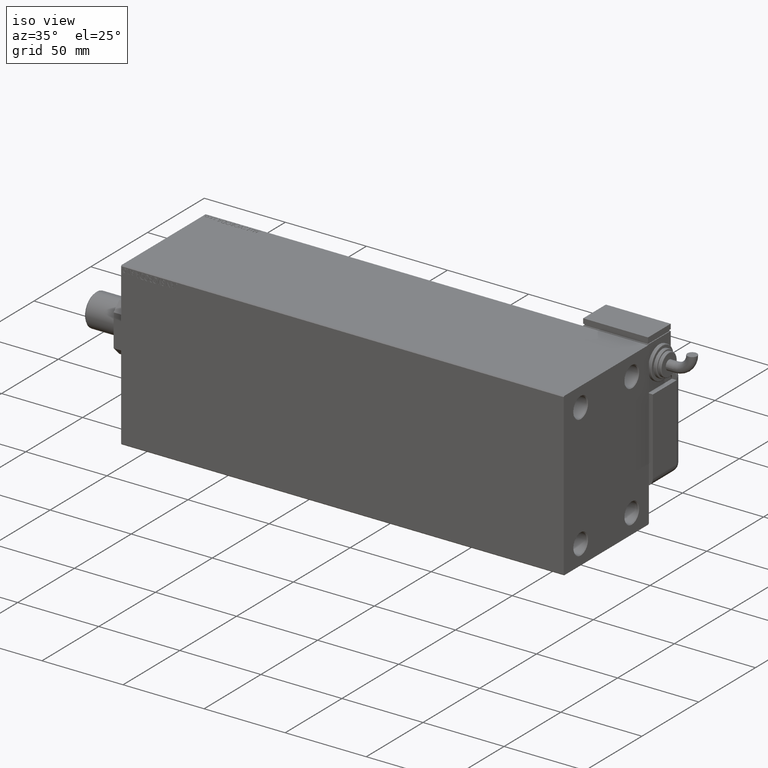
[diagram: clean part render]
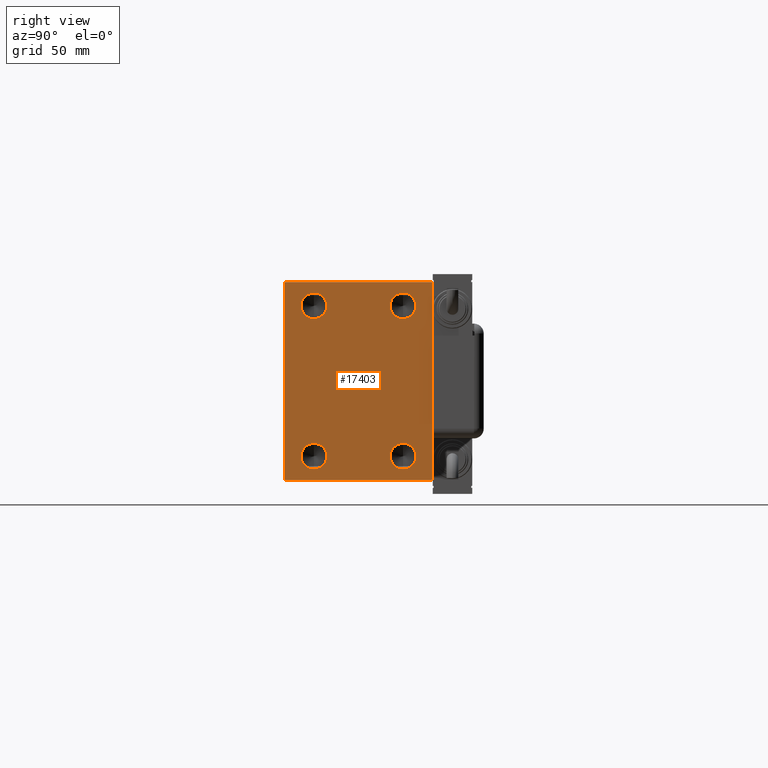
[diagram: tour spotlight — one face highlighted and labeled with its STEP entity id]
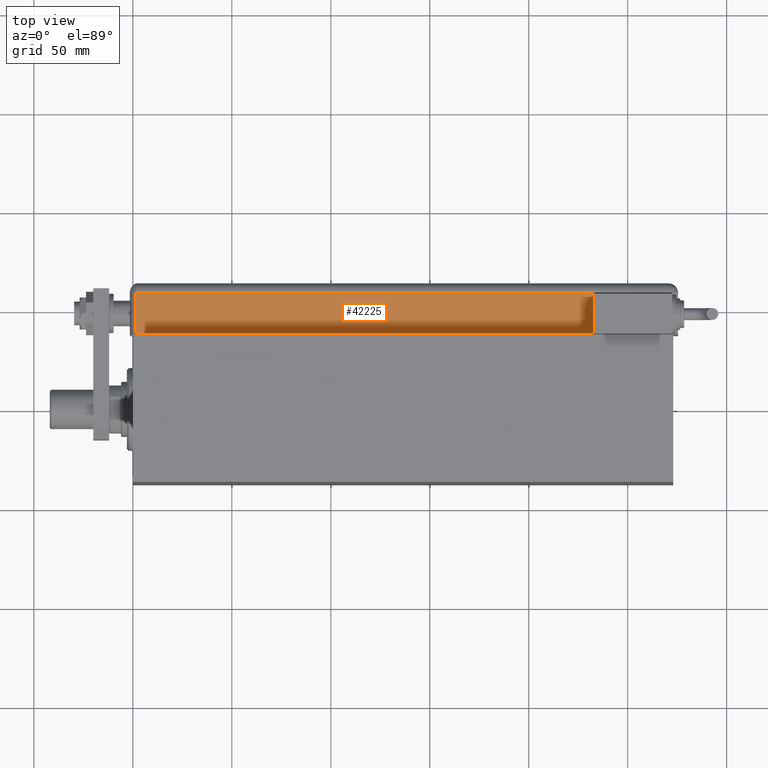
[diagram: tour spotlight — one face highlighted and labeled with its STEP entity id]
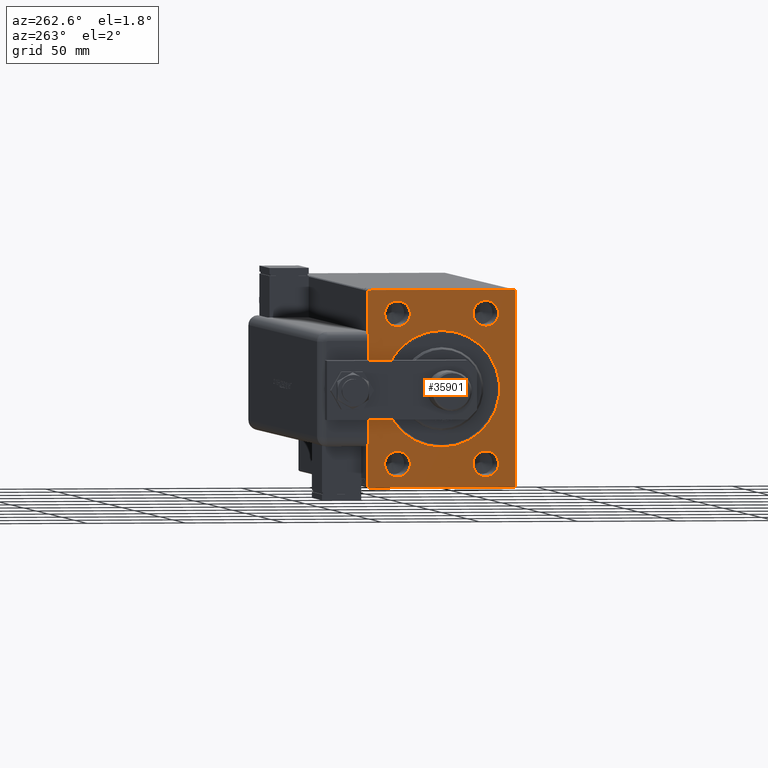
[diagram: tour spotlight — one face highlighted and labeled with its STEP entity id]
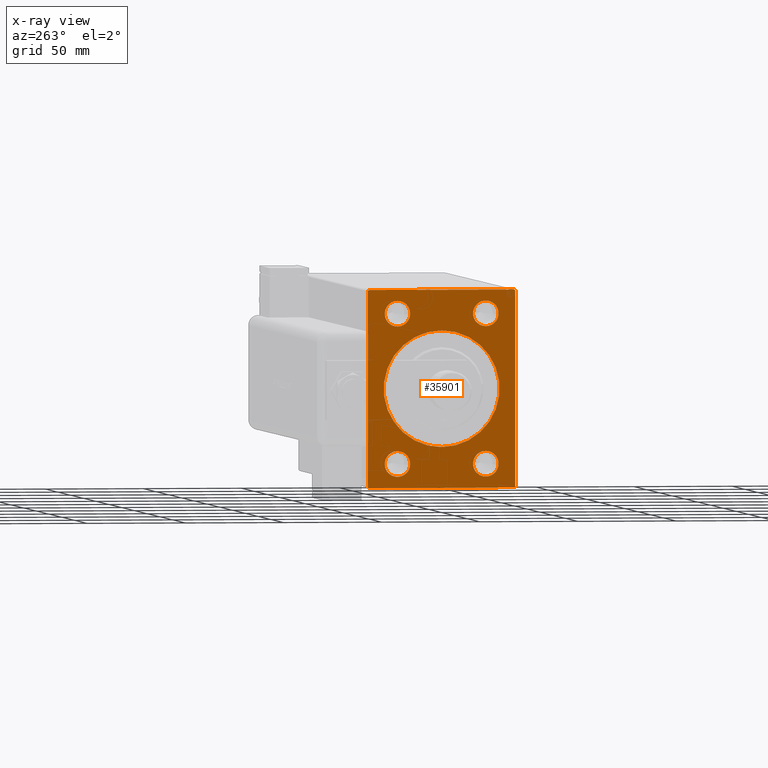
[diagram: x-ray of the same camera — body ghosted, this tour face saturated]
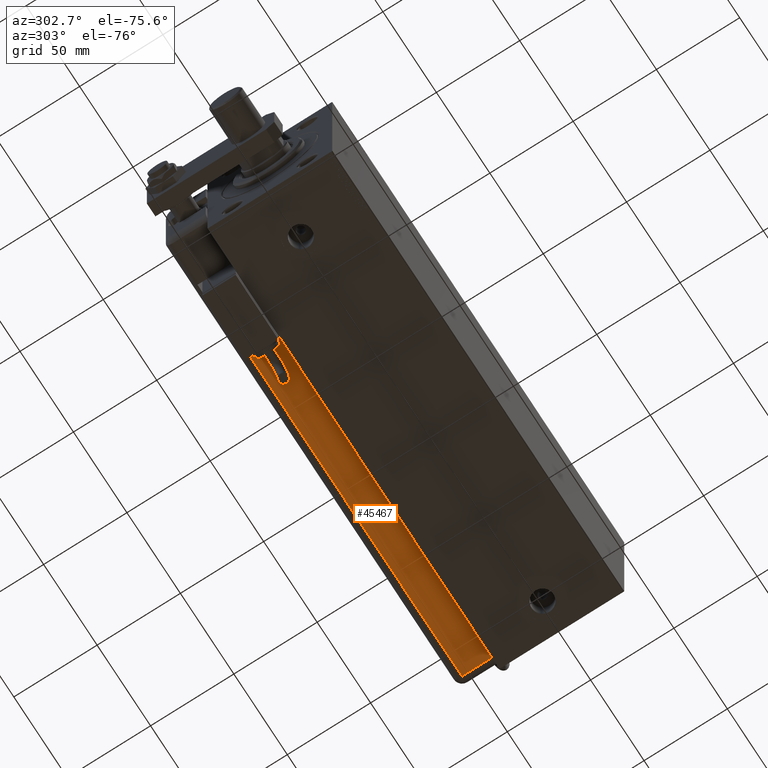
[diagram: tour spotlight — one face highlighted and labeled with its STEP entity id]
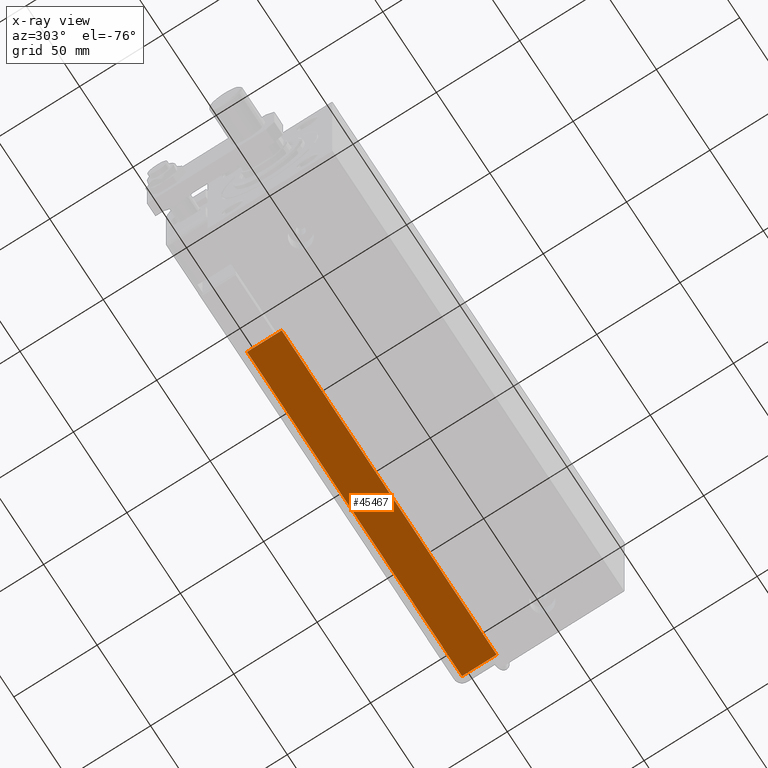
[diagram: x-ray of the same camera — body ghosted, this tour face saturated]
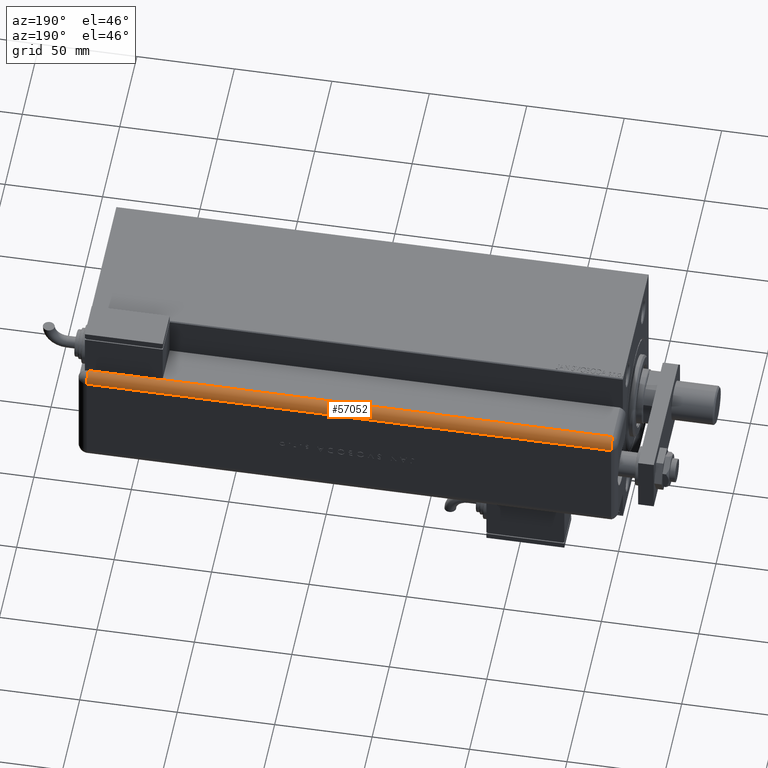
[diagram: tour spotlight — one face highlighted and labeled with its STEP entity id]
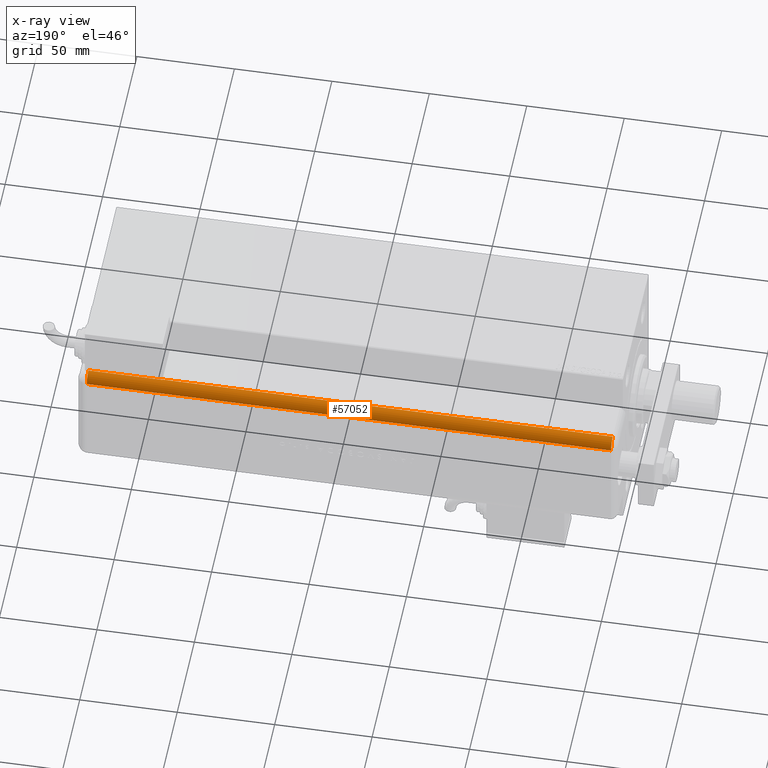
[diagram: x-ray of the same camera — body ghosted, this tour face saturated]
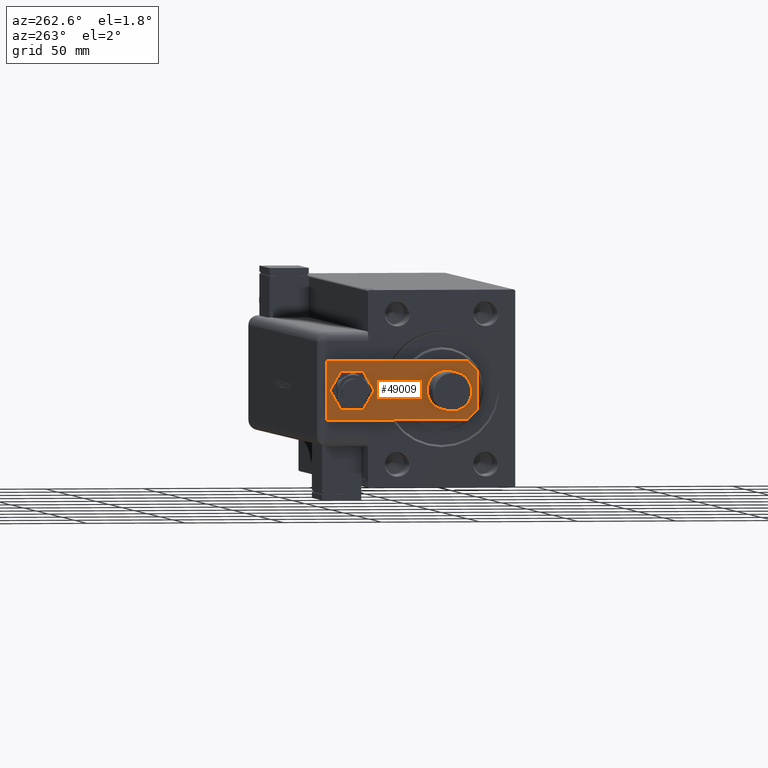
[diagram: tour spotlight — one face highlighted and labeled with its STEP entity id]
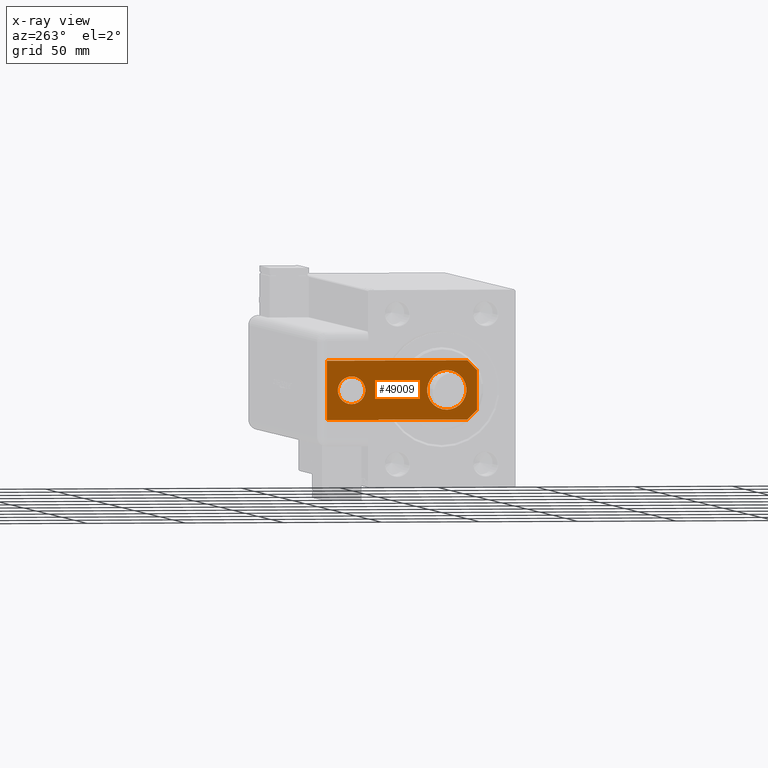
[diagram: x-ray of the same camera — body ghosted, this tour face saturated]
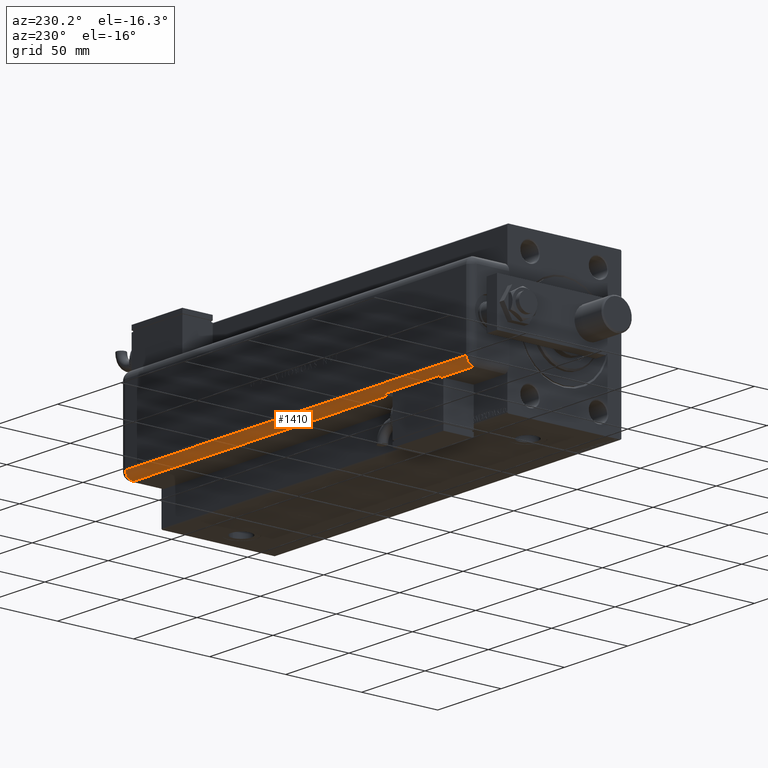
[diagram: tour spotlight — one face highlighted and labeled with its STEP entity id]
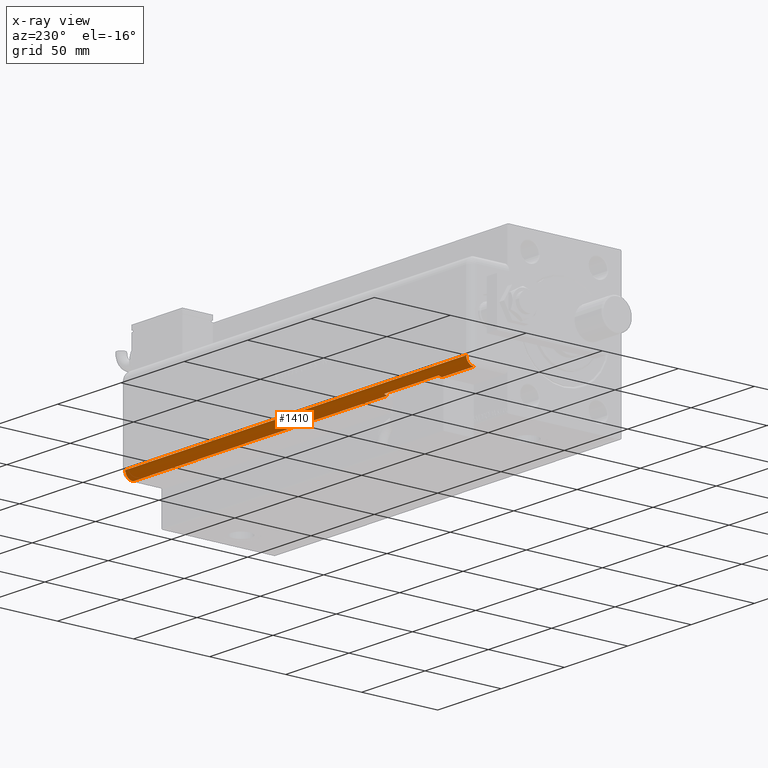
[diagram: x-ray of the same camera — body ghosted, this tour face saturated]
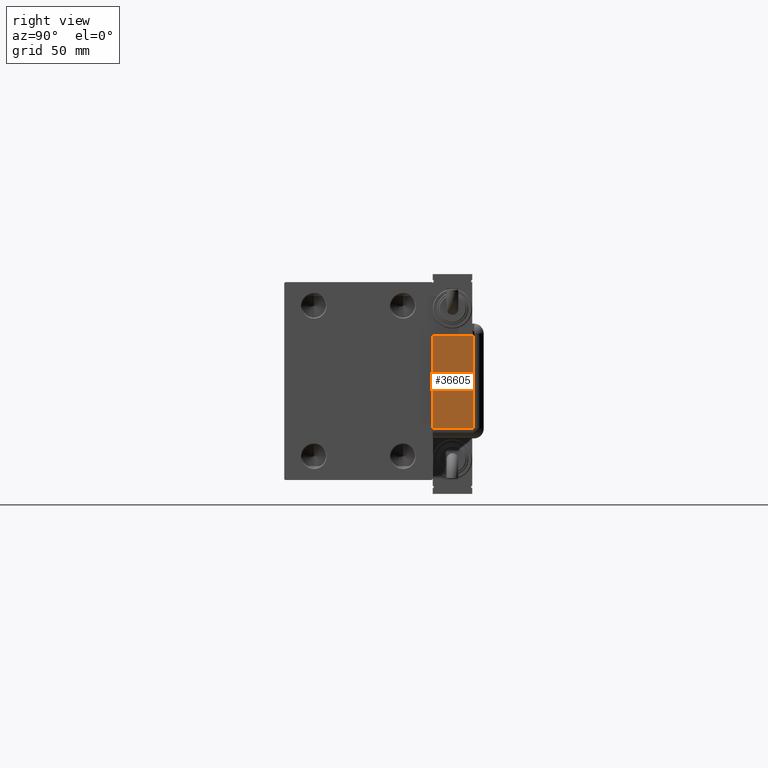
[diagram: tour spotlight — one face highlighted and labeled with its STEP entity id]
A machine part: a face-by-face anatomy tour. The part has 1282 B-rep faces; the first image is the clean iso view, then the 8 largest visible faces are spotlighted one at a time (largest first), each with its STEP entity span.

Face 1 — right view, entity #17403. In plain terms, the highlighted planar face has unit normal (1, 0, 0).
Definition (entity closure, byte-faithful):
#129 = DIRECTION ( 'NONE',  ( 0.000000000000000000, 0.000000000000000000, -1.000000000000000000 ) ) ;
#304 = CIRCLE ( 'NONE', #35488, 6.499999999999922728 ) ;
#1518 = DIRECTION ( 'NONE',  ( 1.000000000000000000, -0.000000000000000000, -0.000000000000000000 ) ) ;
#2415 = CARTESIAN_POINT ( 'NONE',  ( 273.0000000000000000, -22.50000000000000000, 37.99999999999999289 ) ) ;
#2531 = VERTEX_POINT ( 'NONE', #29492 ) ;
#2703 = DIRECTION ( 'NONE',  ( 0.000000000000000000, 0.000000000000000000, -1.000000000000000000 ) ) ;
#2992 = CARTESIAN_POINT ( 'NONE',  ( 273.0000000000000000, 37.00000000000007105, -50.00000000000000000 ) ) ;
#3014 = CARTESIAN_POINT ( 'NONE',  ( 273.0000000000000000, -37.50000000000000000, 49.99999999999998579 ) ) ;
#3431 = ORIENTED_EDGE ( 'NONE', *, *, #48575, .F. ) ;
#3486 = ORIENTED_EDGE ( 'NONE', *, *, #32651, .F. ) ;
#3886 = VERTEX_POINT ( 'NONE', #60370 ) ;
#3907 = ORIENTED_EDGE ( 'NONE', *, *, #43662, .F. ) ;
#4328 = DIRECTION ( 'NONE',  ( 1.000000000000000000, -0.000000000000000000, -0.000000000000000000 ) ) ;
#4589 = DIRECTION ( 'NONE',  ( 0.000000000000000000, 0.000000000000000000, -1.000000000000000000 ) ) ;
#4924 = DIRECTION ( 'NONE',  ( 0.000000000000000000, 0.000000000000000000, -1.000000000000000000 ) ) ;
#5153 = CIRCLE ( 'NONE', #8097, 6.500000000000005329 ) ;
#5927 = CARTESIAN_POINT ( 'NONE',  ( 273.0000000000000000, 22.50000000000000000, 44.49999999999991473 ) ) ;
#6127 = AXIS2_PLACEMENT_3D ( 'NONE', #45758, #51259, #4589 ) ;
#7110 = DIRECTION ( 'NONE',  ( 0.000000000000000000, -1.387778780781445676E-16, 1.000000000000000000 ) ) ;
#7198 = VERTEX_POINT ( 'NONE', #24458 ) ;
#8078 = CARTESIAN_POINT ( 'NONE',  ( 273.0000000000000000, -22.50000000000000000, 31.50000000000007105 ) ) ;
#8097 = AXIS2_PLACEMENT_3D ( 'NONE', #15042, #4328, #4924 ) ;
#8161 = DIRECTION ( 'NONE',  ( 1.000000000000000000, -0.000000000000000000, -0.000000000000000000 ) ) ;
#8457 = EDGE_CURVE ( 'NONE', #29957, #7198, #26045, .T. ) ;
#10677 = DIRECTION ( 'NONE',  ( 0.000000000000000000, 1.000000000000000000, 0.000000000000000000 ) ) ;
#10742 = CIRCLE ( 'NONE', #30392, 6.500000000000005329 ) ;
#10998 = VERTEX_POINT ( 'NONE', #13732 ) ;
#11151 = CARTESIAN_POINT ( 'NONE',  ( 273.0000000000000000, -43.50000000000103739, -43.49999999999862865 ) ) ;
#11800 = VERTEX_POINT ( 'NONE', #51884 ) ;
#13155 = DIRECTION ( 'NONE',  ( 0.000000000000000000, 0.000000000000000000, -1.000000000000000000 ) ) ;
#13622 = DIRECTION ( 'NONE',  ( 1.000000000000000000, -0.000000000000000000, -0.000000000000000000 ) ) ;
#13732 = CARTESIAN_POINT ( 'NONE',  ( 273.0000000000000000, 22.50000000000000000, -44.50000000000004263 ) ) ;
#13989 = DIRECTION ( 'NONE',  ( 0.000000000000000000, -0.7071067811865524577, -0.7071067811865426878 ) ) ;
#14239 = LINE ( 'NONE', #19162, #15457 ) ;
#14302 = ORIENTED_EDGE ( 'NONE', *, *, #32450, .T. ) ;
#15042 = CARTESIAN_POINT ( 'NONE',  ( 273.0000000000000000, -22.50000000000000000, -38.00000000000000711 ) ) ;
#15262 = LINE ( 'NONE', #34018, #46901 ) ;
#15457 = VECTOR ( 'NONE', #51403, 1000.000000000000000 ) ;
#16416 = VECTOR ( 'NONE', #27788, 1000.000000000000000 ) ;
#16563 = LINE ( 'NONE', #17480, #22386 ) ;
#16771 = AXIS2_PLACEMENT_3D ( 'NONE', #36971, #13622, #129 ) ;
#17403 = ADVANCED_FACE ( 'NONE', ( #46920, #32214, #36503, #36800, #37111 ), #51214, .T. ) ;
#17480 = CARTESIAN_POINT ( 'NONE',  ( 273.0000000000000000, -43.49999999999975842, 43.50000000000036238 ) ) ;
#17804 = CARTESIAN_POINT ( 'NONE',  ( 273.0000000000000000, 43.50000000000029132, -43.49999999999968736 ) ) ;
#17979 = DIRECTION ( 'NONE',  ( 0.000000000000000000, 0.000000000000000000, -1.000000000000000000 ) ) ;
#18081 = ORIENTED_EDGE ( 'NONE', *, *, #46372, .T. ) ;
#18230 = VERTEX_POINT ( 'NONE', #5927 ) ;
#18498 = EDGE_LOOP ( 'NONE', ( #3907, #26932 ) ) ;
#18503 = CARTESIAN_POINT ( 'NONE',  ( 273.0000000000000000, -37.00000000000004974, 49.99999999999998579 ) ) ;
#18536 = LINE ( 'NONE', #17804, #47243 ) ;
#18866 = CARTESIAN_POINT ( 'NONE',  ( 273.0000000000000000, 37.49999999999999289, 50.00000000000000711 ) ) ;
#18910 = EDGE_CURVE ( 'NONE', #51018, #29957, #16563, .T. ) ;
#19094 = CARTESIAN_POINT ( 'NONE',  ( 273.0000000000000000, 22.50000000000000000, 37.99999999999999289 ) ) ;
#19162 = CARTESIAN_POINT ( 'NONE',  ( 273.0000000000000000, 43.50000000000130740, 43.49999999999828759 ) ) ;
#20011 = VERTEX_POINT ( 'NONE', #2992 ) ;
#20382 = EDGE_LOOP ( 'NONE', ( #50088, #3486 ) ) ;
#21237 = CARTESIAN_POINT ( 'NONE',  ( 273.0000000000000000, 37.50000000000000711, -50.00000000000000000 ) ) ;
#21274 = DIRECTION ( 'NONE',  ( -0.000000000000000000, 0.7071067811865279218, -0.7071067811865671127 ) ) ;
#21377 = CARTESIAN_POINT ( 'NONE',  ( 273.0000000000000000, -22.50000000000000000, -38.00000000000000711 ) ) ;
#21848 = LINE ( 'NONE', #21237, #53110 ) ;
#22386 = VECTOR ( 'NONE', #13989, 1000.000000000000000 ) ;
#22405 = VERTEX_POINT ( 'NONE', #49657 ) ;
#23701 = CIRCLE ( 'NONE', #44282, 6.499999999999922728 ) ;
#23924 = VECTOR ( 'NONE', #2703, 1000.000000000000000 ) ;
#24458 = CARTESIAN_POINT ( 'NONE',  ( 273.0000000000000000, -37.50000000000000000, -49.49999999999997158 ) ) ;
#25282 = ORIENTED_EDGE ( 'NONE', *, *, #40974, .F. ) ;
#25284 = LINE ( 'NONE', #11151, #44736 ) ;
#25294 = AXIS2_PLACEMENT_3D ( 'NONE', #19094, #37825, #58280 ) ;
#25586 = EDGE_LOOP ( 'NONE', ( #37292, #56987, #47710, #42284, #45193, #30873, #18081, #14302 ) ) ;
#25657 = VERTEX_POINT ( 'NONE', #59409 ) ;
#25812 = CIRCLE ( 'NONE', #35623, 6.500000000000005329 ) ;
#25913 = EDGE_CURVE ( 'NONE', #7198, #11800, #25284, .T. ) ;
#26045 = LINE ( 'NONE', #3014, #23924 ) ;
#26922 = VERTEX_POINT ( 'NONE', #8078 ) ;
#26932 = ORIENTED_EDGE ( 'NONE', *, *, #49409, .F. ) ;
#26995 = CARTESIAN_POINT ( 'NONE',  ( 273.0000000000000000, 0.000000000000000000, 0.000000000000000000 ) ) ;
#27788 = DIRECTION ( 'NONE',  ( 0.000000000000000000, -1.000000000000000000, -2.775557561562891844E-16 ) ) ;
#28524 = ORIENTED_EDGE ( 'NONE', *, *, #45755, .F. ) ;
#29492 = CARTESIAN_POINT ( 'NONE',  ( 273.0000000000000000, -22.50000000000000000, 44.49999999999991473 ) ) ;
#29568 = CARTESIAN_POINT ( 'NONE',  ( 273.0000000000000000, 37.49999999999999289, 49.50000000000000000 ) ) ;
#29957 = VERTEX_POINT ( 'NONE', #45422 ) ;
#30392 = AXIS2_PLACEMENT_3D ( 'NONE', #21377, #8161, #17979 ) ;
#30873 = ORIENTED_EDGE ( 'NONE', *, *, #42706, .T. ) ;
#31162 = AXIS2_PLACEMENT_3D ( 'NONE', #26995, #42023, #13155 ) ;
#31343 = DIRECTION ( 'NONE',  ( -0.000000000000000000, 0.7071067811865425767, 0.7071067811865525687 ) ) ;
#32214 = FACE_BOUND ( 'NONE', #37288, .T. ) ;
#32442 = EDGE_CURVE ( 'NONE', #3886, #51018, #57223, .T. ) ;
#32450 = EDGE_CURVE ( 'NONE', #39132, #3886, #14239, .T. ) ;
#32611 = CIRCLE ( 'NONE', #6127, 6.500000000000005329 ) ;
#32651 = EDGE_CURVE ( 'NONE', #25657, #18230, #36075, .T. ) ;
#34018 = CARTESIAN_POINT ( 'NONE',  ( 273.0000000000000000, -37.50000000000000000, -50.00000000000000000 ) ) ;
#34251 = DIRECTION ( 'NONE',  ( 1.000000000000000000, -0.000000000000000000, -0.000000000000000000 ) ) ;
#35405 = CIRCLE ( 'NONE', #16771, 6.499999999999922728 ) ;
#35488 = AXIS2_PLACEMENT_3D ( 'NONE', #46311, #50605, #41409 ) ;
#35623 = AXIS2_PLACEMENT_3D ( 'NONE', #43750, #34251, #52969 ) ;
#36075 = CIRCLE ( 'NONE', #25294, 6.499999999999922728 ) ;
#36503 = FACE_BOUND ( 'NONE', #43166, .T. ) ;
#36800 = FACE_BOUND ( 'NONE', #18498, .T. ) ;
#36951 = EDGE_CURVE ( 'NONE', #22405, #49040, #10742, .T. ) ;
#36971 = CARTESIAN_POINT ( 'NONE',  ( 273.0000000000000000, -22.50000000000000000, 37.99999999999999289 ) ) ;
#37111 = FACE_OUTER_BOUND ( 'NONE', #25586, .T. ) ;
#37288 = EDGE_LOOP ( 'NONE', ( #25282, #28524 ) ) ;
#37292 = ORIENTED_EDGE ( 'NONE', *, *, #32442, .T. ) ;
#37825 = DIRECTION ( 'NONE',  ( 1.000000000000000000, -0.000000000000000000, -0.000000000000000000 ) ) ;
#39132 = VERTEX_POINT ( 'NONE', #29568 ) ;
#40386 = VERTEX_POINT ( 'NONE', #45423 ) ;
#40467 = CARTESIAN_POINT ( 'NONE',  ( 273.0000000000000000, 37.50000000000000711, -49.50000000000005684 ) ) ;
#40974 = EDGE_CURVE ( 'NONE', #2531, #26922, #35405, .T. ) ;
#41409 = DIRECTION ( 'NONE',  ( 0.000000000000000000, 0.000000000000000000, -1.000000000000000000 ) ) ;
#42023 = DIRECTION ( 'NONE',  ( 1.000000000000000000, 0.000000000000000000, 0.000000000000000000 ) ) ;
#42284 = ORIENTED_EDGE ( 'NONE', *, *, #25913, .T. ) ;
#42706 = EDGE_CURVE ( 'NONE', #20011, #42948, #18536, .T. ) ;
#42948 = VERTEX_POINT ( 'NONE', #40467 ) ;
#43166 = EDGE_LOOP ( 'NONE', ( #3431, #46335 ) ) ;
#43662 = EDGE_CURVE ( 'NONE', #40386, #10998, #32611, .T. ) ;
#43750 = CARTESIAN_POINT ( 'NONE',  ( 273.0000000000000000, 22.50000000000000000, -38.00000000000000711 ) ) ;
#44282 = AXIS2_PLACEMENT_3D ( 'NONE', #2415, #1518, #54003 ) ;
#44736 = VECTOR ( 'NONE', #21274, 1000.000000000000000 ) ;
#45193 = ORIENTED_EDGE ( 'NONE', *, *, #56901, .T. ) ;
#45422 = CARTESIAN_POINT ( 'NONE',  ( 273.0000000000000000, -37.50000000000000000, 49.50000000000004263 ) ) ;
#45423 = CARTESIAN_POINT ( 'NONE',  ( 273.0000000000000000, 22.50000000000000000, -31.49999999999997158 ) ) ;
#45755 = EDGE_CURVE ( 'NONE', #26922, #2531, #23701, .T. ) ;
#45758 = CARTESIAN_POINT ( 'NONE',  ( 273.0000000000000000, 22.50000000000000000, -38.00000000000000711 ) ) ;
#45886 = EDGE_CURVE ( 'NONE', #18230, #25657, #304, .T. ) ;
#46311 = CARTESIAN_POINT ( 'NONE',  ( 273.0000000000000000, 22.50000000000000000, 37.99999999999999289 ) ) ;
#46335 = ORIENTED_EDGE ( 'NONE', *, *, #36951, .F. ) ;
#46372 = EDGE_CURVE ( 'NONE', #42948, #39132, #21848, .T. ) ;
#46901 = VECTOR ( 'NONE', #10677, 1000.000000000000000 ) ;
#46920 = FACE_BOUND ( 'NONE', #20382, .T. ) ;
#47243 = VECTOR ( 'NONE', #31343, 999.9999999999998863 ) ;
#47710 = ORIENTED_EDGE ( 'NONE', *, *, #8457, .T. ) ;
#48575 = EDGE_CURVE ( 'NONE', #49040, #22405, #5153, .T. ) ;
#49040 = VERTEX_POINT ( 'NONE', #55142 ) ;
#49409 = EDGE_CURVE ( 'NONE', #10998, #40386, #25812, .T. ) ;
#49657 = CARTESIAN_POINT ( 'NONE',  ( 273.0000000000000000, -22.50000000000000000, -44.50000000000004263 ) ) ;
#50088 = ORIENTED_EDGE ( 'NONE', *, *, #45886, .F. ) ;
#50605 = DIRECTION ( 'NONE',  ( 1.000000000000000000, -0.000000000000000000, -0.000000000000000000 ) ) ;
#51018 = VERTEX_POINT ( 'NONE', #18503 ) ;
#51214 = PLANE ( 'NONE',  #31162 ) ;
#51259 = DIRECTION ( 'NONE',  ( 1.000000000000000000, -0.000000000000000000, -0.000000000000000000 ) ) ;
#51403 = DIRECTION ( 'NONE',  ( -0.000000000000000000, -0.7071067811865230368, 0.7071067811865721087 ) ) ;
#51884 = CARTESIAN_POINT ( 'NONE',  ( 273.0000000000000000, -37.00000000000002842, -50.00000000000000000 ) ) ;
#52969 = DIRECTION ( 'NONE',  ( 0.000000000000000000, 0.000000000000000000, -1.000000000000000000 ) ) ;
#53110 = VECTOR ( 'NONE', #7110, 1000.000000000000000 ) ;
#54003 = DIRECTION ( 'NONE',  ( 0.000000000000000000, 0.000000000000000000, -1.000000000000000000 ) ) ;
#55142 = CARTESIAN_POINT ( 'NONE',  ( 273.0000000000000000, -22.50000000000000000, -31.49999999999997158 ) ) ;
#56901 = EDGE_CURVE ( 'NONE', #11800, #20011, #15262, .T. ) ;
#56987 = ORIENTED_EDGE ( 'NONE', *, *, #18910, .T. ) ;
#57223 = LINE ( 'NONE', #18866, #16416 ) ;
#58280 = DIRECTION ( 'NONE',  ( 0.000000000000000000, 0.000000000000000000, -1.000000000000000000 ) ) ;
#59409 = CARTESIAN_POINT ( 'NONE',  ( 273.0000000000000000, 22.50000000000000000, 31.50000000000007105 ) ) ;
#60370 = CARTESIAN_POINT ( 'NONE',  ( 273.0000000000000000, 37.00000000000002132, 50.00000000000000711 ) ) ;

Face 2 — top view, entity #42225. In plain terms, the highlighted planar face has unit normal (-0, -0, -1).
Definition (entity closure, byte-faithful):
#3125 = DIRECTION ( 'NONE',  ( -0.000000000000000000, -0.000000000000000000, -1.000000000000000000 ) ) ;
#3133 = EDGE_CURVE ( 'NONE', #58799, #52471, #44268, .T. ) ;
#3702 = LINE ( 'NONE', #28251, #41426 ) ;
#7672 = ORIENTED_EDGE ( 'NONE', *, *, #60165, .F. ) ;
#7686 = ORIENTED_EDGE ( 'NONE', *, *, #46772, .F. ) ;
#12366 = CARTESIAN_POINT ( 'NONE',  ( 28.99999999999999645, 20.79999999999998295, 43.00000000000000000 ) ) ;
#13117 = ORIENTED_EDGE ( 'NONE', *, *, #3133, .T. ) ;
#14867 = DIRECTION ( 'NONE',  ( -0.000000000000000000, 1.000000000000000000, -0.000000000000000000 ) ) ;
#16811 = CARTESIAN_POINT ( 'NONE',  ( 28.99999999999999645, -9.421223957302265857E-15, 274.0000000000000000 ) ) ;
#19072 = ORIENTED_EDGE ( 'NONE', *, *, #43667, .T. ) ;
#19773 = FACE_OUTER_BOUND ( 'NONE', #27488, .T. ) ;
#27488 = EDGE_LOOP ( 'NONE', ( #13117, #7686, #19072, #7672 ) ) ;
#28251 = CARTESIAN_POINT ( 'NONE',  ( 28.99999999999999645, 20.79999999999998295, 274.0000000000000000 ) ) ;
#31304 = DIRECTION ( 'NONE',  ( -0.000000000000000000, -1.000000000000000000, -0.000000000000000000 ) ) ;
#31652 = DIRECTION ( 'NONE',  ( -0.000000000000000000, -0.000000000000000000, 1.000000000000000000 ) ) ;
#32213 = LINE ( 'NONE', #45101, #33577 ) ;
#33577 = VECTOR ( 'NONE', #31304, 1000.000000000000000 ) ;
#34486 = CARTESIAN_POINT ( 'NONE',  ( 28.99999999999999645, 25.79999999999998295, 274.0000000000000000 ) ) ;
#36114 = VECTOR ( 'NONE', #14867, 1000.000000000000000 ) ;
#37915 = LINE ( 'NONE', #43433, #36114 ) ;
#39096 = PLANE ( 'NONE',  #49201 ) ;
#41426 = VECTOR ( 'NONE', #31652, 1000.000000000000000 ) ;
#41454 = CARTESIAN_POINT ( 'NONE',  ( 28.99999999999999645, 20.79999999999998295, 274.0000000000000000 ) ) ;
#41749 = CARTESIAN_POINT ( 'NONE',  ( 28.99999999999999645, 0.000000000000000000, 43.00000000000000000 ) ) ;
#42225 = ADVANCED_FACE ( 'NONE', ( #19773 ), #39096, .F. ) ;
#42664 = VERTEX_POINT ( 'NONE', #41454 ) ;
#43106 = DIRECTION ( 'NONE',  ( 0.000000000000000000, 0.000000000000000000, 1.000000000000000000 ) ) ;
#43433 = CARTESIAN_POINT ( 'NONE',  ( 28.99999999999999645, 25.79999999999998295, 274.0000000000000000 ) ) ;
#43667 = EDGE_CURVE ( 'NONE', #44418, #42664, #3702, .T. ) ;
#44268 = LINE ( 'NONE', #59000, #45452 ) ;
#44418 = VERTEX_POINT ( 'NONE', #12366 ) ;
#45101 = CARTESIAN_POINT ( 'NONE',  ( 28.99999999999999645, 0.000000000000000000, 43.00000000000000000 ) ) ;
#45452 = VECTOR ( 'NONE', #3125, 1000.000000000000000 ) ;
#46772 = EDGE_CURVE ( 'NONE', #44418, #52471, #32213, .T. ) ;
#49201 = AXIS2_PLACEMENT_3D ( 'NONE', #34486, #56606, #43106 ) ;
#52471 = VERTEX_POINT ( 'NONE', #41749 ) ;
#56606 = DIRECTION ( 'NONE',  ( -1.000000000000000000, 0.000000000000000000, 0.000000000000000000 ) ) ;
#58799 = VERTEX_POINT ( 'NONE', #16811 ) ;
#59000 = CARTESIAN_POINT ( 'NONE',  ( 28.99999999999999645, -9.421223957302265857E-15, 274.0000000000000000 ) ) ;
#60165 = EDGE_CURVE ( 'NONE', #58799, #42664, #37915, .T. ) ;

Face 3 — auxiliary view, entity #35901. An x-ray twin of the same camera follows (body ghosted, this face saturated) — the face is partly hidden behind the body. In plain terms, the highlighted planar face has unit normal (1, 0, 0).
Definition (entity closure, byte-faithful):
#89 = DIRECTION ( 'NONE',  ( 0.000000000000000000, -0.7071067811865425767, -0.7071067811865525687 ) ) ;
#403 = DIRECTION ( 'NONE',  ( 0.000000000000000000, -1.387778780781445676E-16, 1.000000000000000000 ) ) ;
#560 = AXIS2_PLACEMENT_3D ( 'NONE', #22523, #22217, #27448 ) ;
#793 = CIRCLE ( 'NONE', #16460, 6.499999999999922728 ) ;
#1344 = ORIENTED_EDGE ( 'NONE', *, *, #27243, .T. ) ;
#1557 = CARTESIAN_POINT ( 'NONE',  ( 0.000000000000000000, -22.50000000000000000, -38.00000000000000711 ) ) ;
#2376 = ORIENTED_EDGE ( 'NONE', *, *, #35064, .F. ) ;
#2753 = DIRECTION ( 'NONE',  ( 0.000000000000000000, 1.000000000000000000, 0.000000000000000000 ) ) ;
#3227 = ORIENTED_EDGE ( 'NONE', *, *, #46450, .T. ) ;
#3637 = VECTOR ( 'NONE', #40507, 1000.000000000000000 ) ;
#4895 = CARTESIAN_POINT ( 'NONE',  ( 0.000000000000000000, -22.50000000000000000, -31.50000000000000000 ) ) ;
#5109 = CARTESIAN_POINT ( 'NONE',  ( 0.000000000000000000, -22.50000000000000000, -44.50000000000001421 ) ) ;
#5180 = EDGE_CURVE ( 'NONE', #7700, #28774, #11077, .T. ) ;
#5671 = CARTESIAN_POINT ( 'NONE',  ( 0.000000000000000000, -22.50000000000000000, 31.50000000000007105 ) ) ;
#5904 = EDGE_CURVE ( 'NONE', #50172, #50956, #49417, .T. ) ;
#6052 = CARTESIAN_POINT ( 'NONE',  ( 0.000000000000000000, 22.50000000000000000, 37.99999999999999289 ) ) ;
#6309 = VERTEX_POINT ( 'NONE', #7278 ) ;
#6338 = DIRECTION ( 'NONE',  ( -0.000000000000000000, -0.7071067811865279218, 0.7071067811865671127 ) ) ;
#6545 = CIRCLE ( 'NONE', #54638, 6.499999999999922728 ) ;
#6813 = CARTESIAN_POINT ( 'NONE',  ( 0.000000000000000000, 22.50000000000000000, -44.50000000000001421 ) ) ;
#7067 = EDGE_CURVE ( 'NONE', #43688, #25575, #39569, .T. ) ;
#7278 = CARTESIAN_POINT ( 'NONE',  ( 0.000000000000000000, -37.50000000000000000, 49.50000000000004263 ) ) ;
#7447 = EDGE_LOOP ( 'NONE', ( #25711, #10627, #2376, #46513, #15291, #23724, #42874, #11531 ) ) ;
#7700 = VERTEX_POINT ( 'NONE', #57224 ) ;
#7718 = VECTOR ( 'NONE', #52082, 1000.000000000000000 ) ;
#7955 = CARTESIAN_POINT ( 'NONE',  ( 0.000000000000000000, -37.50000000000000000, -49.49999999999997158 ) ) ;
#8466 = ORIENTED_EDGE ( 'NONE', *, *, #15787, .T. ) ;
#8622 = DIRECTION ( 'NONE',  ( 1.000000000000000000, 0.000000000000000000, 0.000000000000000000 ) ) ;
#9110 = VECTOR ( 'NONE', #2753, 1000.000000000000000 ) ;
#9157 = AXIS2_PLACEMENT_3D ( 'NONE', #1557, #34125, #57745 ) ;
#9219 = DIRECTION ( 'NONE',  ( 0.000000000000000000, 0.000000000000000000, -1.000000000000000000 ) ) ;
#9227 = CARTESIAN_POINT ( 'NONE',  ( 0.000000000000000000, -37.50000000000000000, 49.50000000000004263 ) ) ;
#9523 = DIRECTION ( 'NONE',  ( -0.000000000000000000, 0.7071067811865524577, 0.7071067811865426878 ) ) ;
#10356 = DIRECTION ( 'NONE',  ( 0.000000000000000000, 0.000000000000000000, -1.000000000000000000 ) ) ;
#10627 = ORIENTED_EDGE ( 'NONE', *, *, #47562, .T. ) ;
#10984 = AXIS2_PLACEMENT_3D ( 'NONE', #40881, #18142, #46090 ) ;
#11077 = CIRCLE ( 'NONE', #17964, 29.50000000000002842 ) ;
#11082 = EDGE_CURVE ( 'NONE', #6309, #39446, #13129, .T. ) ;
#11391 = CARTESIAN_POINT ( 'NONE',  ( 0.000000000000000000, -22.50000000000000000, -38.00000000000000711 ) ) ;
#11531 = ORIENTED_EDGE ( 'NONE', *, *, #44707, .T. ) ;
#11721 = ORIENTED_EDGE ( 'NONE', *, *, #5180, .T. ) ;
#12282 = FACE_BOUND ( 'NONE', #17267, .T. ) ;
#12402 = EDGE_CURVE ( 'NONE', #22697, #27389, #29017, .T. ) ;
#12987 = DIRECTION ( 'NONE',  ( 1.000000000000000000, 0.000000000000000000, 0.000000000000000000 ) ) ;
#13129 = LINE ( 'NONE', #17744, #17157 ) ;
#15291 = ORIENTED_EDGE ( 'NONE', *, *, #28360, .F. ) ;
#15787 = EDGE_CURVE ( 'NONE', #60178, #36965, #6545, .T. ) ;
#16052 = CARTESIAN_POINT ( 'NONE',  ( 0.000000000000000000, 37.50000000000000711, -49.50000000000005684 ) ) ;
#16376 = CIRCLE ( 'NONE', #20301, 6.500000000000005329 ) ;
#16460 = AXIS2_PLACEMENT_3D ( 'NONE', #59065, #58455, #31148 ) ;
#17068 = VERTEX_POINT ( 'NONE', #25324 ) ;
#17157 = VECTOR ( 'NONE', #27580, 1000.000000000000000 ) ;
#17267 = EDGE_LOOP ( 'NONE', ( #18266, #43773 ) ) ;
#17744 = CARTESIAN_POINT ( 'NONE',  ( 0.000000000000000000, -37.50000000000000000, 49.99999999999998579 ) ) ;
#17941 = VERTEX_POINT ( 'NONE', #20416 ) ;
#17964 = AXIS2_PLACEMENT_3D ( 'NONE', #50625, #27310, #54326 ) ;
#18142 = DIRECTION ( 'NONE',  ( 1.000000000000000000, 0.000000000000000000, 0.000000000000000000 ) ) ;
#18266 = ORIENTED_EDGE ( 'NONE', *, *, #12402, .T. ) ;
#19855 = ORIENTED_EDGE ( 'NONE', *, *, #56215, .T. ) ;
#19878 = CARTESIAN_POINT ( 'NONE',  ( 0.000000000000000000, -37.00000000000002842, -50.00000000000000000 ) ) ;
#20301 = AXIS2_PLACEMENT_3D ( 'NONE', #11391, #35038, #30144 ) ;
#20416 = CARTESIAN_POINT ( 'NONE',  ( 0.000000000000000000, -37.00000000000004974, 49.99999999999998579 ) ) ;
#20760 = CIRCLE ( 'NONE', #10984, 6.499999999999922728 ) ;
#20902 = DIRECTION ( 'NONE',  ( 0.000000000000000000, 0.000000000000000000, -1.000000000000000000 ) ) ;
#21470 = LINE ( 'NONE', #40198, #3637 ) ;
#21627 = EDGE_CURVE ( 'NONE', #28774, #7700, #31158, .T. ) ;
#21815 = FACE_BOUND ( 'NONE', #29968, .T. ) ;
#22217 = DIRECTION ( 'NONE',  ( 1.000000000000000000, 0.000000000000000000, 0.000000000000000000 ) ) ;
#22523 = CARTESIAN_POINT ( 'NONE',  ( 0.000000000000000000, 22.50000000000000000, -38.00000000000000711 ) ) ;
#22697 = VERTEX_POINT ( 'NONE', #49821 ) ;
#23440 = AXIS2_PLACEMENT_3D ( 'NONE', #35329, #44829, #20902 ) ;
#23443 = VERTEX_POINT ( 'NONE', #36168 ) ;
#23724 = ORIENTED_EDGE ( 'NONE', *, *, #44544, .T. ) ;
#24048 = CARTESIAN_POINT ( 'NONE',  ( 0.000000000000000000, -37.50000000000000000, -50.00000000000000000 ) ) ;
#24984 = VERTEX_POINT ( 'NONE', #37882 ) ;
#25324 = CARTESIAN_POINT ( 'NONE',  ( 0.000000000000000000, 22.50000000000000000, 31.50000000000007105 ) ) ;
#25575 = VERTEX_POINT ( 'NONE', #5109 ) ;
#25711 = ORIENTED_EDGE ( 'NONE', *, *, #11082, .F. ) ;
#26733 = PLANE ( 'NONE',  #23440 ) ;
#27091 = AXIS2_PLACEMENT_3D ( 'NONE', #6052, #42303, #10356 ) ;
#27243 = EDGE_CURVE ( 'NONE', #25575, #43688, #16376, .T. ) ;
#27310 = DIRECTION ( 'NONE',  ( 1.000000000000000000, 0.000000000000000000, 0.000000000000000000 ) ) ;
#27389 = VERTEX_POINT ( 'NONE', #6813 ) ;
#27448 = DIRECTION ( 'NONE',  ( 0.000000000000000000, 0.000000000000000000, -1.000000000000000000 ) ) ;
#27580 = DIRECTION ( 'NONE',  ( 0.000000000000000000, 0.000000000000000000, -1.000000000000000000 ) ) ;
#28360 = EDGE_CURVE ( 'NONE', #44348, #23443, #33269, .T. ) ;
#28774 = VERTEX_POINT ( 'NONE', #59301 ) ;
#29017 = CIRCLE ( 'NONE', #560, 6.500000000000005329 ) ;
#29032 = CIRCLE ( 'NONE', #27091, 6.499999999999922728 ) ;
#29968 = EDGE_LOOP ( 'NONE', ( #33606, #19855 ) ) ;
#30144 = DIRECTION ( 'NONE',  ( 0.000000000000000000, 0.000000000000000000, -1.000000000000000000 ) ) ;
#30197 = CARTESIAN_POINT ( 'NONE',  ( 0.000000000000000000, -37.00000000000002842, -50.00000000000000000 ) ) ;
#30337 = ORIENTED_EDGE ( 'NONE', *, *, #7067, .T. ) ;
#31148 = DIRECTION ( 'NONE',  ( 0.000000000000000000, 0.000000000000000000, -1.000000000000000000 ) ) ;
#31158 = CIRCLE ( 'NONE', #39989, 29.50000000000002842 ) ;
#32060 = CIRCLE ( 'NONE', #45762, 6.500000000000005329 ) ;
#32458 = EDGE_LOOP ( 'NONE', ( #48521, #11721 ) ) ;
#33269 = LINE ( 'NONE', #46472, #41921 ) ;
#33606 = ORIENTED_EDGE ( 'NONE', *, *, #51682, .T. ) ;
#33671 = CARTESIAN_POINT ( 'NONE',  ( 0.000000000000000000, 37.49999999999999289, 50.00000000000000711 ) ) ;
#33847 = CARTESIAN_POINT ( 'NONE',  ( 0.000000000000000000, 37.50000000000000711, -49.50000000000005684 ) ) ;
#34125 = DIRECTION ( 'NONE',  ( 1.000000000000000000, 0.000000000000000000, 0.000000000000000000 ) ) ;
#35038 = DIRECTION ( 'NONE',  ( 1.000000000000000000, 0.000000000000000000, 0.000000000000000000 ) ) ;
#35064 = EDGE_CURVE ( 'NONE', #42721, #17941, #46871, .T. ) ;
#35107 = CARTESIAN_POINT ( 'NONE',  ( 0.000000000000000000, 37.00000000000007105, -50.00000000000000000 ) ) ;
#35329 = CARTESIAN_POINT ( 'NONE',  ( 0.000000000000000000, 0.000000000000000000, 0.000000000000000000 ) ) ;
#35727 = CARTESIAN_POINT ( 'NONE',  ( 0.000000000000000000, -22.50000000000000000, 37.99999999999999289 ) ) ;
#35901 = ADVANCED_FACE ( 'NONE', ( #54359, #58350, #59265, #21815, #12282, #44529 ), #26733, .F. ) ;
#36168 = CARTESIAN_POINT ( 'NONE',  ( 0.000000000000000000, 37.49999999999999289, 49.50000000000000000 ) ) ;
#36965 = VERTEX_POINT ( 'NONE', #40105 ) ;
#37460 = VECTOR ( 'NONE', #9523, 1000.000000000000000 ) ;
#37882 = CARTESIAN_POINT ( 'NONE',  ( 0.000000000000000000, 22.50000000000000000, 44.49999999999991473 ) ) ;
#38086 = LINE ( 'NONE', #9227, #37460 ) ;
#39446 = VERTEX_POINT ( 'NONE', #7955 ) ;
#39569 = CIRCLE ( 'NONE', #9157, 6.500000000000005329 ) ;
#39989 = AXIS2_PLACEMENT_3D ( 'NONE', #51092, #50485, #45888 ) ;
#40105 = CARTESIAN_POINT ( 'NONE',  ( 0.000000000000000000, -22.50000000000000000, 44.49999999999991473 ) ) ;
#40198 = CARTESIAN_POINT ( 'NONE',  ( 0.000000000000000000, 37.00000000000002132, 50.00000000000000711 ) ) ;
#40507 = DIRECTION ( 'NONE',  ( -0.000000000000000000, 0.7071067811865230368, -0.7071067811865721087 ) ) ;
#40881 = CARTESIAN_POINT ( 'NONE',  ( 0.000000000000000000, -22.50000000000000000, 37.99999999999999289 ) ) ;
#41469 = VECTOR ( 'NONE', #6338, 1000.000000000000000 ) ;
#41921 = VECTOR ( 'NONE', #403, 1000.000000000000000 ) ;
#42303 = DIRECTION ( 'NONE',  ( 1.000000000000000000, 0.000000000000000000, 0.000000000000000000 ) ) ;
#42721 = VERTEX_POINT ( 'NONE', #46060 ) ;
#42874 = ORIENTED_EDGE ( 'NONE', *, *, #5904, .F. ) ;
#43688 = VERTEX_POINT ( 'NONE', #4895 ) ;
#43773 = ORIENTED_EDGE ( 'NONE', *, *, #52005, .T. ) ;
#44348 = VERTEX_POINT ( 'NONE', #16052 ) ;
#44529 = FACE_OUTER_BOUND ( 'NONE', #7447, .T. ) ;
#44544 = EDGE_CURVE ( 'NONE', #44348, #50956, #51341, .T. ) ;
#44707 = EDGE_CURVE ( 'NONE', #50172, #39446, #52719, .T. ) ;
#44829 = DIRECTION ( 'NONE',  ( 1.000000000000000000, 0.000000000000000000, 0.000000000000000000 ) ) ;
#45479 = EDGE_LOOP ( 'NONE', ( #30337, #1344 ) ) ;
#45762 = AXIS2_PLACEMENT_3D ( 'NONE', #60493, #8622, #9219 ) ;
#45888 = DIRECTION ( 'NONE',  ( 0.000000000000000000, 0.000000000000000000, -1.000000000000000000 ) ) ;
#46060 = CARTESIAN_POINT ( 'NONE',  ( 0.000000000000000000, 37.00000000000002132, 50.00000000000000711 ) ) ;
#46090 = DIRECTION ( 'NONE',  ( 0.000000000000000000, 0.000000000000000000, -1.000000000000000000 ) ) ;
#46450 = EDGE_CURVE ( 'NONE', #36965, #60178, #20760, .T. ) ;
#46472 = CARTESIAN_POINT ( 'NONE',  ( 0.000000000000000000, 37.50000000000000711, -50.00000000000000000 ) ) ;
#46513 = ORIENTED_EDGE ( 'NONE', *, *, #56601, .T. ) ;
#46730 = EDGE_LOOP ( 'NONE', ( #3227, #8466 ) ) ;
#46871 = LINE ( 'NONE', #33671, #7718 ) ;
#47562 = EDGE_CURVE ( 'NONE', #6309, #17941, #38086, .T. ) ;
#48521 = ORIENTED_EDGE ( 'NONE', *, *, #21627, .T. ) ;
#49417 = LINE ( 'NONE', #24048, #9110 ) ;
#49821 = CARTESIAN_POINT ( 'NONE',  ( 0.000000000000000000, 22.50000000000000000, -31.50000000000000000 ) ) ;
#50146 = DIRECTION ( 'NONE',  ( 0.000000000000000000, 0.000000000000000000, -1.000000000000000000 ) ) ;
#50172 = VERTEX_POINT ( 'NONE', #30197 ) ;
#50485 = DIRECTION ( 'NONE',  ( 1.000000000000000000, 0.000000000000000000, 0.000000000000000000 ) ) ;
#50625 = CARTESIAN_POINT ( 'NONE',  ( 0.000000000000000000, 0.000000000000000000, 0.000000000000000000 ) ) ;
#50956 = VERTEX_POINT ( 'NONE', #35107 ) ;
#51092 = CARTESIAN_POINT ( 'NONE',  ( 0.000000000000000000, 0.000000000000000000, 0.000000000000000000 ) ) ;
#51261 = VECTOR ( 'NONE', #89, 999.9999999999998863 ) ;
#51341 = LINE ( 'NONE', #33847, #51261 ) ;
#51682 = EDGE_CURVE ( 'NONE', #24984, #17068, #29032, .T. ) ;
#52005 = EDGE_CURVE ( 'NONE', #27389, #22697, #32060, .T. ) ;
#52082 = DIRECTION ( 'NONE',  ( 0.000000000000000000, -1.000000000000000000, -2.775557561562891844E-16 ) ) ;
#52719 = LINE ( 'NONE', #19878, #41469 ) ;
#54326 = DIRECTION ( 'NONE',  ( 0.000000000000000000, 0.000000000000000000, -1.000000000000000000 ) ) ;
#54359 = FACE_BOUND ( 'NONE', #32458, .T. ) ;
#54638 = AXIS2_PLACEMENT_3D ( 'NONE', #35727, #12987, #50146 ) ;
#56215 = EDGE_CURVE ( 'NONE', #17068, #24984, #793, .T. ) ;
#56601 = EDGE_CURVE ( 'NONE', #42721, #23443, #21470, .T. ) ;
#57224 = CARTESIAN_POINT ( 'NONE',  ( 0.000000000000000000, 3.612708057484695548E-15, -29.50000000000002842 ) ) ;
#57745 = DIRECTION ( 'NONE',  ( 0.000000000000000000, 0.000000000000000000, -1.000000000000000000 ) ) ;
#58350 = FACE_BOUND ( 'NONE', #45479, .T. ) ;
#58455 = DIRECTION ( 'NONE',  ( 1.000000000000000000, 0.000000000000000000, 0.000000000000000000 ) ) ;
#59065 = CARTESIAN_POINT ( 'NONE',  ( 0.000000000000000000, 22.50000000000000000, 37.99999999999999289 ) ) ;
#59265 = FACE_BOUND ( 'NONE', #46730, .T. ) ;
#59301 = CARTESIAN_POINT ( 'NONE',  ( 0.000000000000000000, 0.000000000000000000, 29.50000000000002842 ) ) ;
#60178 = VERTEX_POINT ( 'NONE', #5671 ) ;
#60493 = CARTESIAN_POINT ( 'NONE',  ( 0.000000000000000000, 22.50000000000000000, -38.00000000000000711 ) ) ;

Face 4 — auxiliary view, entity #45467. An x-ray twin of the same camera follows (body ghosted, this face saturated) — the face is partly hidden behind the body. In plain terms, the highlighted planar face has unit normal (0, 0, 1).
Definition (entity closure, byte-faithful):
#117 = LINE ( 'NONE', #27144, #29774 ) ;
#2116 = CARTESIAN_POINT ( 'NONE',  ( -28.99999999999999645, -9.421223957302264279E-15, 206.0000000000000284 ) ) ;
#2901 = EDGE_CURVE ( 'NONE', #51108, #35231, #117, .T. ) ;
#2910 = LINE ( 'NONE', #35761, #42945 ) ;
#3232 = VECTOR ( 'NONE', #25633, 1000.000000000000000 ) ;
#3807 = DIRECTION ( 'NONE',  ( 0.000000000000000000, -1.000000000000000000, 0.000000000000000000 ) ) ;
#8879 = ORIENTED_EDGE ( 'NONE', *, *, #2901, .T. ) ;
#12712 = CARTESIAN_POINT ( 'NONE',  ( -28.99999999999999645, 20.79999999999998295, 274.0000000000000000 ) ) ;
#13339 = CARTESIAN_POINT ( 'NONE',  ( -28.99999999999999645, 20.79999999999998295, 206.0000000000000284 ) ) ;
#15995 = CARTESIAN_POINT ( 'NONE',  ( -28.99999999999999645, 25.79999999999998295, 274.0000000000000000 ) ) ;
#20053 = ORIENTED_EDGE ( 'NONE', *, *, #49483, .T. ) ;
#20543 = EDGE_CURVE ( 'NONE', #21284, #36512, #33455, .T. ) ;
#21284 = VERTEX_POINT ( 'NONE', #13339 ) ;
#21569 = EDGE_CURVE ( 'NONE', #36512, #35231, #2910, .T. ) ;
#25633 = DIRECTION ( 'NONE',  ( 0.000000000000000000, 0.000000000000000000, -1.000000000000000000 ) ) ;
#26586 = EDGE_LOOP ( 'NONE', ( #56441, #27339, #20053, #8879 ) ) ;
#27144 = CARTESIAN_POINT ( 'NONE',  ( -28.99999999999999645, -1.040834085586084257E-14, 5.000000000000004441 ) ) ;
#27339 = ORIENTED_EDGE ( 'NONE', *, *, #20543, .F. ) ;
#27923 = CARTESIAN_POINT ( 'NONE',  ( -28.99999999999999645, 22.99999999999998934, 206.0000000000000284 ) ) ;
#28842 = DIRECTION ( 'NONE',  ( 0.000000000000000000, -1.000000000000000000, 0.000000000000000000 ) ) ;
#29774 = VECTOR ( 'NONE', #3807, 1000.000000000000000 ) ;
#30151 = DIRECTION ( 'NONE',  ( 1.000000000000000000, 0.000000000000000000, -0.000000000000000000 ) ) ;
#33455 = LINE ( 'NONE', #27923, #49719 ) ;
#34616 = AXIS2_PLACEMENT_3D ( 'NONE', #15995, #30151, #48866 ) ;
#35231 = VERTEX_POINT ( 'NONE', #59403 ) ;
#35761 = CARTESIAN_POINT ( 'NONE',  ( -28.99999999999999645, -9.421223957302265857E-15, 274.0000000000000000 ) ) ;
#36512 = VERTEX_POINT ( 'NONE', #2116 ) ;
#39048 = CARTESIAN_POINT ( 'NONE',  ( -28.99999999999999645, 20.79999999999998295, 5.000000000000004441 ) ) ;
#39351 = FACE_OUTER_BOUND ( 'NONE', #26586, .T. ) ;
#42945 = VECTOR ( 'NONE', #54484, 1000.000000000000000 ) ;
#44644 = LINE ( 'NONE', #12712, #3232 ) ;
#45467 = ADVANCED_FACE ( 'NONE', ( #39351 ), #58074, .F. ) ;
#48866 = DIRECTION ( 'NONE',  ( -0.000000000000000000, 0.000000000000000000, -1.000000000000000000 ) ) ;
#49483 = EDGE_CURVE ( 'NONE', #21284, #51108, #44644, .T. ) ;
#49719 = VECTOR ( 'NONE', #28842, 1000.000000000000000 ) ;
#51108 = VERTEX_POINT ( 'NONE', #39048 ) ;
#54484 = DIRECTION ( 'NONE',  ( -0.000000000000000000, -0.000000000000000000, -1.000000000000000000 ) ) ;
#56441 = ORIENTED_EDGE ( 'NONE', *, *, #21569, .F. ) ;
#58074 = PLANE ( 'NONE',  #34616 ) ;
#59403 = CARTESIAN_POINT ( 'NONE',  ( -28.99999999999999645, -9.421223957302265857E-15, 5.000000000000004441 ) ) ;

Face 5 — auxiliary view, entity #57052. An x-ray twin of the same camera follows (body ghosted, this face saturated) — the face is partly hidden behind the body. In plain terms, the highlighted cylindrical surface (edge-blend (fillet) strip) has radius 5 mm, axis along (1, -0, -0).
Definition (entity closure, byte-faithful):
#3702 = LINE ( 'NONE', #28251, #41426 ) ;
#4773 = CIRCLE ( 'NONE', #39098, 5.000000000000000888 ) ;
#5027 = ORIENTED_EDGE ( 'NONE', *, *, #24541, .F. ) ;
#5800 = CARTESIAN_POINT ( 'NONE',  ( 23.99999999999999289, 25.79999999999998295, 274.0000000000000000 ) ) ;
#6083 = CARTESIAN_POINT ( 'NONE',  ( 23.99999999999999289, 20.79999999999998295, 274.0000000000000000 ) ) ;
#6362 = CARTESIAN_POINT ( 'NONE',  ( 23.99999999999999289, 25.79999999999998295, 5.000000000000004441 ) ) ;
#6701 = AXIS2_PLACEMENT_3D ( 'NONE', #34828, #38549, #48359 ) ;
#9527 = CARTESIAN_POINT ( 'NONE',  ( 28.99599839871871154, 20.99999999999999289, 43.00000000000000000 ) ) ;
#12366 = CARTESIAN_POINT ( 'NONE',  ( 28.99999999999999645, 20.79999999999998295, 43.00000000000000000 ) ) ;
#13443 = VECTOR ( 'NONE', #24533, 1000.000000000000000 ) ;
#13889 = CARTESIAN_POINT ( 'NONE',  ( 23.99999999999999289, 25.79999999999998295, 274.0000000000000000 ) ) ;
#14379 = DIRECTION ( 'NONE',  ( 1.000000000000000000, -6.383782391594648845E-14, 0.000000000000000000 ) ) ;
#16447 = DIRECTION ( 'NONE',  ( -0.000000000000000000, -0.000000000000000000, 1.000000000000000000 ) ) ;
#20213 = CIRCLE ( 'NONE', #25127, 5.000000000000000888 ) ;
#20415 = FACE_OUTER_BOUND ( 'NONE', #53954, .T. ) ;
#24533 = DIRECTION ( 'NONE',  ( 0.000000000000000000, 0.000000000000000000, -1.000000000000000000 ) ) ;
#24541 = EDGE_CURVE ( 'NONE', #42664, #45201, #20213, .T. ) ;
#24826 = DIRECTION ( 'NONE',  ( -0.000000000000000000, -0.000000000000000000, 1.000000000000000000 ) ) ;
#24875 = ORIENTED_EDGE ( 'NONE', *, *, #57930, .F. ) ;
#25127 = AXIS2_PLACEMENT_3D ( 'NONE', #6083, #24826, #53648 ) ;
#25559 = CIRCLE ( 'NONE', #58901, 5.000000000000000888 ) ;
#27668 = ORIENTED_EDGE ( 'NONE', *, *, #38908, .T. ) ;
#28251 = CARTESIAN_POINT ( 'NONE',  ( 28.99999999999999645, 20.79999999999998295, 274.0000000000000000 ) ) ;
#28840 = DIRECTION ( 'NONE',  ( -0.000000000000000000, 0.000000000000000000, -1.000000000000000000 ) ) ;
#29994 = CARTESIAN_POINT ( 'NONE',  ( 28.99599839871871154, 20.99999999999995737, 274.0000000000000000 ) ) ;
#31652 = DIRECTION ( 'NONE',  ( -0.000000000000000000, -0.000000000000000000, 1.000000000000000000 ) ) ;
#31882 = EDGE_CURVE ( 'NONE', #46617, #44418, #4773, .T. ) ;
#32083 = VERTEX_POINT ( 'NONE', #55172 ) ;
#34828 = CARTESIAN_POINT ( 'NONE',  ( 23.99999999999999289, 20.79999999999998295, 274.0000000000000000 ) ) ;
#35637 = ORIENTED_EDGE ( 'NONE', *, *, #31882, .F. ) ;
#36049 = CARTESIAN_POINT ( 'NONE',  ( 23.99999999999999289, 20.79999999999998295, 5.000000000000004441 ) ) ;
#38549 = DIRECTION ( 'NONE',  ( 0.000000000000000000, 0.000000000000000000, -1.000000000000000000 ) ) ;
#38908 = EDGE_CURVE ( 'NONE', #32083, #48961, #25559, .T. ) ;
#39098 = AXIS2_PLACEMENT_3D ( 'NONE', #56768, #28840, #14379 ) ;
#40353 = DIRECTION ( 'NONE',  ( -0.000000000000000000, -0.000000000000000000, 1.000000000000000000 ) ) ;
#41426 = VECTOR ( 'NONE', #31652, 1000.000000000000000 ) ;
#41454 = CARTESIAN_POINT ( 'NONE',  ( 28.99999999999999645, 20.79999999999998295, 274.0000000000000000 ) ) ;
#42664 = VERTEX_POINT ( 'NONE', #41454 ) ;
#43667 = EDGE_CURVE ( 'NONE', #44418, #42664, #3702, .T. ) ;
#44394 = LINE ( 'NONE', #29994, #50760 ) ;
#44418 = VERTEX_POINT ( 'NONE', #12366 ) ;
#45201 = VERTEX_POINT ( 'NONE', #13889 ) ;
#46483 = ORIENTED_EDGE ( 'NONE', *, *, #54125, .F. ) ;
#46617 = VERTEX_POINT ( 'NONE', #9527 ) ;
#48359 = DIRECTION ( 'NONE',  ( -1.000000000000000000, 0.000000000000000000, 0.000000000000000000 ) ) ;
#48961 = VERTEX_POINT ( 'NONE', #6362 ) ;
#50463 = DIRECTION ( 'NONE',  ( -1.000000000000000000, 0.000000000000000000, 0.000000000000000000 ) ) ;
#50760 = VECTOR ( 'NONE', #16447, 1000.000000000000000 ) ;
#53648 = DIRECTION ( 'NONE',  ( -1.000000000000000000, 0.000000000000000000, 0.000000000000000000 ) ) ;
#53954 = EDGE_LOOP ( 'NONE', ( #35637, #46483, #27668, #24875, #5027, #58128 ) ) ;
#54125 = EDGE_CURVE ( 'NONE', #32083, #46617, #44394, .T. ) ;
#55172 = CARTESIAN_POINT ( 'NONE',  ( 28.99599839871871154, 21.00000000000000000, 5.000000000000004441 ) ) ;
#56763 = LINE ( 'NONE', #5800, #13443 ) ;
#56768 = CARTESIAN_POINT ( 'NONE',  ( 23.99999999999999289, 20.79999999999998295, 42.99999999999998579 ) ) ;
#57052 = ADVANCED_FACE ( 'NONE', ( #20415 ), #57864, .T. ) ;
#57864 = CYLINDRICAL_SURFACE ( 'NONE', #6701, 5.000000000000000888 ) ;
#57930 = EDGE_CURVE ( 'NONE', #45201, #48961, #56763, .T. ) ;
#58128 = ORIENTED_EDGE ( 'NONE', *, *, #43667, .F. ) ;
#58901 = AXIS2_PLACEMENT_3D ( 'NONE', #36049, #40353, #50463 ) ;

Face 6 — auxiliary view, entity #49009. An x-ray twin of the same camera follows (body ghosted, this face saturated) — the face is partly hidden behind the body. In plain terms, the highlighted planar face has unit normal (1, -0, -0).
Definition (entity closure, byte-faithful):
#847 = VECTOR ( 'NONE', #60076, 1000.000000000000114 ) ;
#1765 = CARTESIAN_POINT ( 'NONE',  ( 0.000000000000000000, 0.000000000000000000, 0.000000000000000000 ) ) ;
#3712 = AXIS2_PLACEMENT_3D ( 'NONE', #59415, #58807, #41309 ) ;
#3950 = CARTESIAN_POINT ( 'NONE',  ( 15.00000000000000888, 5.000000000000004441, 0.000000000000000000 ) ) ;
#4373 = DIRECTION ( 'NONE',  ( -1.360567432138672328E-16, -1.000000000000000000, 0.000000000000000000 ) ) ;
#4665 = CIRCLE ( 'NONE', #3712, 10.00000000000000711 ) ;
#7407 = EDGE_CURVE ( 'NONE', #12424, #24303, #22910, .T. ) ;
#9710 = CARTESIAN_POINT ( 'NONE',  ( 15.00000000000000888, 9.629649721936179265E-32, 0.000000000000000000 ) ) ;
#9851 = LINE ( 'NONE', #56821, #13426 ) ;
#10318 = EDGE_CURVE ( 'NONE', #10916, #60551, #41240, .T. ) ;
#10916 = VERTEX_POINT ( 'NONE', #49081 ) ;
#11571 = PLANE ( 'NONE',  #32653 ) ;
#12424 = VERTEX_POINT ( 'NONE', #41566 ) ;
#12682 = EDGE_CURVE ( 'NONE', #44558, #48094, #60431, .T. ) ;
#13132 = AXIS2_PLACEMENT_3D ( 'NONE', #47407, #41601, #24068 ) ;
#13258 = ORIENTED_EDGE ( 'NONE', *, *, #12682, .T. ) ;
#13426 = VECTOR ( 'NONE', #47616, 1000.000000000000000 ) ;
#14191 = CARTESIAN_POINT ( 'NONE',  ( 0.000000000000000000, 15.50000000000000000, 0.000000000000000000 ) ) ;
#14495 = DIRECTION ( 'NONE',  ( 0.000000000000000000, 0.000000000000000000, 1.000000000000000000 ) ) ;
#14581 = DIRECTION ( 'NONE',  ( 0.000000000000000000, 0.000000000000000000, 1.000000000000000000 ) ) ;
#15267 = DIRECTION ( 'NONE',  ( 1.000000000000000000, 0.000000000000000000, 0.000000000000000000 ) ) ;
#17110 = VECTOR ( 'NONE', #4373, 1000.000000000000000 ) ;
#17426 = CARTESIAN_POINT ( 'NONE',  ( 10.00000000000000711, 15.50000000000000178, 0.000000000000000000 ) ) ;
#18671 = EDGE_CURVE ( 'NONE', #19244, #10916, #9851, .T. ) ;
#19244 = VERTEX_POINT ( 'NONE', #21251 ) ;
#19899 = DIRECTION ( 'NONE',  ( -0.000000000000000000, 0.000000000000000000, 1.000000000000000000 ) ) ;
#21079 = EDGE_CURVE ( 'NONE', #42974, #30715, #4665, .T. ) ;
#21155 = VECTOR ( 'NONE', #37401, 1000.000000000000114 ) ;
#21251 = CARTESIAN_POINT ( 'NONE',  ( 15.00000000000000355, 76.50000000000000000, 0.000000000000000000 ) ) ;
#22206 = CARTESIAN_POINT ( 'NONE',  ( -10.00000000000001066, 9.629649721936179265E-32, 0.000000000000000000 ) ) ;
#22910 = CIRCLE ( 'NONE', #13132, 7.000000000000000000 ) ;
#23269 = EDGE_LOOP ( 'NONE', ( #27995, #45508, #32004, #43271, #50060, #13258 ) ) ;
#24068 = DIRECTION ( 'NONE',  ( 1.000000000000000000, 0.000000000000000000, 0.000000000000000000 ) ) ;
#24303 = VERTEX_POINT ( 'NONE', #29476 ) ;
#24513 = FACE_BOUND ( 'NONE', #33421, .T. ) ;
#26100 = ORIENTED_EDGE ( 'NONE', *, *, #21079, .T. ) ;
#27644 = EDGE_LOOP ( 'NONE', ( #45876, #55845 ) ) ;
#27995 = ORIENTED_EDGE ( 'NONE', *, *, #60083, .F. ) ;
#29252 = VECTOR ( 'NONE', #52035, 1000.000000000000000 ) ;
#29476 = CARTESIAN_POINT ( 'NONE',  ( -7.000000000000000000, 64.00000000000000000, 0.000000000000000000 ) ) ;
#30169 = CIRCLE ( 'NONE', #43872, 7.000000000000000000 ) ;
#30715 = VERTEX_POINT ( 'NONE', #55237 ) ;
#30717 = ORIENTED_EDGE ( 'NONE', *, *, #45327, .T. ) ;
#30929 = CARTESIAN_POINT ( 'NONE',  ( -10.00000000000001066, 9.629649721936179265E-32, 0.000000000000000000 ) ) ;
#31076 = EDGE_CURVE ( 'NONE', #44558, #19244, #37959, .T. ) ;
#31269 = VECTOR ( 'NONE', #43177, 1000.000000000000000 ) ;
#32004 = ORIENTED_EDGE ( 'NONE', *, *, #10318, .F. ) ;
#32653 = AXIS2_PLACEMENT_3D ( 'NONE', #1765, #19899, #15267 ) ;
#33421 = EDGE_LOOP ( 'NONE', ( #30717, #26100 ) ) ;
#34099 = EDGE_CURVE ( 'NONE', #55292, #60551, #59161, .T. ) ;
#34825 = CARTESIAN_POINT ( 'NONE',  ( 9.999999999999982236, 9.629649721936179265E-32, 0.000000000000000000 ) ) ;
#36553 = AXIS2_PLACEMENT_3D ( 'NONE', #14191, #14495, #37542 ) ;
#37401 = DIRECTION ( 'NONE',  ( -0.7071067811865489050, -0.7071067811865460184, -0.000000000000000000 ) ) ;
#37542 = DIRECTION ( 'NONE',  ( 1.000000000000000000, 0.000000000000000000, 0.000000000000000000 ) ) ;
#37959 = LINE ( 'NONE', #9710, #31269 ) ;
#38524 = CARTESIAN_POINT ( 'NONE',  ( -15.00000000000000888, 9.629649721936179265E-32, 0.000000000000000000 ) ) ;
#41240 = LINE ( 'NONE', #55944, #17110 ) ;
#41309 = DIRECTION ( 'NONE',  ( 1.000000000000000000, 0.000000000000000000, 0.000000000000000000 ) ) ;
#41566 = CARTESIAN_POINT ( 'NONE',  ( 7.000000000000000000, 64.00000000000000000, 0.000000000000000000 ) ) ;
#41601 = DIRECTION ( 'NONE',  ( 0.000000000000000000, 0.000000000000000000, 1.000000000000000000 ) ) ;
#42149 = CARTESIAN_POINT ( 'NONE',  ( 15.00000000000000888, 5.000000000000004441, 0.000000000000000000 ) ) ;
#42974 = VERTEX_POINT ( 'NONE', #17426 ) ;
#43134 = LINE ( 'NONE', #38524, #29252 ) ;
#43177 = DIRECTION ( 'NONE',  ( -6.802837160693361638E-17, 1.000000000000000000, 0.000000000000000000 ) ) ;
#43271 = ORIENTED_EDGE ( 'NONE', *, *, #18671, .F. ) ;
#43822 = FACE_OUTER_BOUND ( 'NONE', #23269, .T. ) ;
#43872 = AXIS2_PLACEMENT_3D ( 'NONE', #57259, #14581, #48055 ) ;
#44558 = VERTEX_POINT ( 'NONE', #42149 ) ;
#45327 = EDGE_CURVE ( 'NONE', #30715, #42974, #55159, .T. ) ;
#45508 = ORIENTED_EDGE ( 'NONE', *, *, #34099, .T. ) ;
#45876 = ORIENTED_EDGE ( 'NONE', *, *, #55085, .T. ) ;
#47407 = CARTESIAN_POINT ( 'NONE',  ( 1.963948872468190046E-17, 64.00000000000000000, 0.000000000000000000 ) ) ;
#47616 = DIRECTION ( 'NONE',  ( -1.000000000000000000, 0.000000000000000000, 0.000000000000000000 ) ) ;
#48055 = DIRECTION ( 'NONE',  ( 1.000000000000000000, 0.000000000000000000, 0.000000000000000000 ) ) ;
#48094 = VERTEX_POINT ( 'NONE', #34825 ) ;
#48864 = CARTESIAN_POINT ( 'NONE',  ( -15.00000000000000888, 5.000000000000018652, 0.000000000000000000 ) ) ;
#49009 = ADVANCED_FACE ( 'NONE', ( #43822, #52432, #24513 ), #11571, .F. ) ;
#49081 = CARTESIAN_POINT ( 'NONE',  ( -14.99999999999999822, 76.50000000000000000, 0.000000000000000000 ) ) ;
#50060 = ORIENTED_EDGE ( 'NONE', *, *, #31076, .F. ) ;
#52035 = DIRECTION ( 'NONE',  ( 1.000000000000000000, 0.000000000000000000, 0.000000000000000000 ) ) ;
#52432 = FACE_BOUND ( 'NONE', #27644, .T. ) ;
#55085 = EDGE_CURVE ( 'NONE', #24303, #12424, #30169, .T. ) ;
#55159 = CIRCLE ( 'NONE', #36553, 10.00000000000000711 ) ;
#55237 = CARTESIAN_POINT ( 'NONE',  ( -10.00000000000000711, 15.50000000000000000, 0.000000000000000000 ) ) ;
#55292 = VERTEX_POINT ( 'NONE', #22206 ) ;
#55845 = ORIENTED_EDGE ( 'NONE', *, *, #7407, .T. ) ;
#55944 = CARTESIAN_POINT ( 'NONE',  ( -14.99999999999999822, 76.50000000000000000, 0.000000000000000000 ) ) ;
#56821 = CARTESIAN_POINT ( 'NONE',  ( 15.00000000000000355, 76.50000000000000000, 0.000000000000000000 ) ) ;
#57259 = CARTESIAN_POINT ( 'NONE',  ( 1.963948872468190046E-17, 64.00000000000000000, 0.000000000000000000 ) ) ;
#58807 = DIRECTION ( 'NONE',  ( 0.000000000000000000, 0.000000000000000000, 1.000000000000000000 ) ) ;
#59161 = LINE ( 'NONE', #30929, #847 ) ;
#59415 = CARTESIAN_POINT ( 'NONE',  ( 0.000000000000000000, 15.50000000000000000, 0.000000000000000000 ) ) ;
#60076 = DIRECTION ( 'NONE',  ( -0.7071067811865460184, 0.7071067811865489050, -0.000000000000000000 ) ) ;
#60083 = EDGE_CURVE ( 'NONE', #55292, #48094, #43134, .T. ) ;
#60431 = LINE ( 'NONE', #3950, #21155 ) ;
#60551 = VERTEX_POINT ( 'NONE', #48864 ) ;

Face 7 — auxiliary view, entity #1410. An x-ray twin of the same camera follows (body ghosted, this face saturated) — the face is partly hidden behind the body. In plain terms, the highlighted cylindrical surface (edge-blend (fillet) strip) has radius 5 mm, axis along (1, -0, -0).
Definition (entity closure, byte-faithful):
#1410 = ADVANCED_FACE ( 'NONE', ( #34509 ), #53230, .T. ) ;
#1960 = DIRECTION ( 'NONE',  ( 0.000000000000000000, 0.000000000000000000, -1.000000000000000000 ) ) ;
#2588 = ORIENTED_EDGE ( 'NONE', *, *, #12462, .F. ) ;
#3232 = VECTOR ( 'NONE', #25633, 1000.000000000000000 ) ;
#3289 = DIRECTION ( 'NONE',  ( -1.000000000000000000, 4.163336342344336238E-15, 0.000000000000000000 ) ) ;
#7263 = CARTESIAN_POINT ( 'NONE',  ( -28.48998886412872267, 22.99999999999998934, 206.0000000000000284 ) ) ;
#7502 = ORIENTED_EDGE ( 'NONE', *, *, #47972, .F. ) ;
#8003 = CARTESIAN_POINT ( 'NONE',  ( -28.99999999999999645, 20.79999999999998295, 274.0000000000000000 ) ) ;
#8403 = CIRCLE ( 'NONE', #31955, 5.000000000000000888 ) ;
#8857 = LINE ( 'NONE', #51824, #47323 ) ;
#9105 = EDGE_LOOP ( 'NONE', ( #41523, #31542, #2588, #55707, #37572, #7502, #16230, #25875 ) ) ;
#9193 = DIRECTION ( 'NONE',  ( 0.000000000000000000, 0.000000000000000000, -1.000000000000000000 ) ) ;
#10695 = VERTEX_POINT ( 'NONE', #8003 ) ;
#12462 = EDGE_CURVE ( 'NONE', #13496, #41307, #8403, .T. ) ;
#12712 = CARTESIAN_POINT ( 'NONE',  ( -28.99999999999999645, 20.79999999999998295, 274.0000000000000000 ) ) ;
#12892 = LINE ( 'NONE', #50653, #39965 ) ;
#13339 = CARTESIAN_POINT ( 'NONE',  ( -28.99999999999999645, 20.79999999999998295, 206.0000000000000284 ) ) ;
#13496 = VERTEX_POINT ( 'NONE', #46877 ) ;
#13534 = VECTOR ( 'NONE', #31229, 1000.000000000000000 ) ;
#15289 = CIRCLE ( 'NONE', #24166, 5.000000000000000888 ) ;
#16230 = ORIENTED_EDGE ( 'NONE', *, *, #44832, .T. ) ;
#16470 = LINE ( 'NONE', #39814, #13534 ) ;
#16944 = CARTESIAN_POINT ( 'NONE',  ( -28.48998886412872267, 22.99999999999998934, 249.0000000000000284 ) ) ;
#17327 = CARTESIAN_POINT ( 'NONE',  ( -23.99999999999999645, 25.79999999999998295, 5.000000000000004441 ) ) ;
#17564 = VERTEX_POINT ( 'NONE', #7263 ) ;
#20687 = DIRECTION ( 'NONE',  ( -1.000000000000000000, 0.000000000000000000, 0.000000000000000000 ) ) ;
#20764 = DIRECTION ( 'NONE',  ( -0.000000000000000000, -0.000000000000000000, 1.000000000000000000 ) ) ;
#21284 = VERTEX_POINT ( 'NONE', #13339 ) ;
#21651 = VERTEX_POINT ( 'NONE', #17327 ) ;
#24166 = AXIS2_PLACEMENT_3D ( 'NONE', #31849, #26635, #3289 ) ;
#24565 = CARTESIAN_POINT ( 'NONE',  ( -23.99999999999999645, 20.79999999999998295, 274.0000000000000000 ) ) ;
#24665 = EDGE_CURVE ( 'NONE', #17564, #21284, #15289, .T. ) ;
#24812 = AXIS2_PLACEMENT_3D ( 'NONE', #59127, #20764, #49911 ) ;
#25306 = CARTESIAN_POINT ( 'NONE',  ( -23.99999999999999645, 20.79999999999998295, 274.0000000000000000 ) ) ;
#25633 = DIRECTION ( 'NONE',  ( 0.000000000000000000, 0.000000000000000000, -1.000000000000000000 ) ) ;
#25875 = ORIENTED_EDGE ( 'NONE', *, *, #49483, .F. ) ;
#26635 = DIRECTION ( 'NONE',  ( -0.000000000000000000, -0.000000000000000000, 1.000000000000000000 ) ) ;
#28507 = DIRECTION ( 'NONE',  ( -0.000000000000000000, -0.000000000000000000, 1.000000000000000000 ) ) ;
#31229 = DIRECTION ( 'NONE',  ( 0.000000000000000000, 0.000000000000000000, -1.000000000000000000 ) ) ;
#31542 = ORIENTED_EDGE ( 'NONE', *, *, #33165, .F. ) ;
#31849 = CARTESIAN_POINT ( 'NONE',  ( -23.99999999999999645, 20.79999999999998295, 206.0000000000000284 ) ) ;
#31955 = AXIS2_PLACEMENT_3D ( 'NONE', #50153, #40961, #59677 ) ;
#32212 = CARTESIAN_POINT ( 'NONE',  ( -23.99999999999999645, 25.79999999999998295, 274.0000000000000000 ) ) ;
#33165 = EDGE_CURVE ( 'NONE', #41307, #17564, #16470, .T. ) ;
#34509 = FACE_OUTER_BOUND ( 'NONE', #9105, .T. ) ;
#37572 = ORIENTED_EDGE ( 'NONE', *, *, #51436, .F. ) ;
#38528 = CIRCLE ( 'NONE', #24812, 5.000000000000000888 ) ;
#38843 = CIRCLE ( 'NONE', #57464, 5.000000000000000888 ) ;
#39048 = CARTESIAN_POINT ( 'NONE',  ( -28.99999999999999645, 20.79999999999998295, 5.000000000000004441 ) ) ;
#39814 = CARTESIAN_POINT ( 'NONE',  ( -28.48998886412872267, 22.99999999999998934, 274.0000000000000000 ) ) ;
#39965 = VECTOR ( 'NONE', #9193, 1000.000000000000000 ) ;
#40961 = DIRECTION ( 'NONE',  ( 0.000000000000000000, -0.000000000000000000, -1.000000000000000000 ) ) ;
#41307 = VERTEX_POINT ( 'NONE', #16944 ) ;
#41523 = ORIENTED_EDGE ( 'NONE', *, *, #24665, .F. ) ;
#43287 = DIRECTION ( 'NONE',  ( -0.000000000000000000, -0.000000000000000000, 1.000000000000000000 ) ) ;
#44644 = LINE ( 'NONE', #12712, #3232 ) ;
#44832 = EDGE_CURVE ( 'NONE', #21651, #51108, #38528, .T. ) ;
#46877 = CARTESIAN_POINT ( 'NONE',  ( -28.99999999999999645, 20.79999999999998295, 249.0000000000000284 ) ) ;
#47323 = VECTOR ( 'NONE', #28507, 1000.000000000000000 ) ;
#47972 = EDGE_CURVE ( 'NONE', #21651, #56764, #8857, .T. ) ;
#49483 = EDGE_CURVE ( 'NONE', #21284, #51108, #44644, .T. ) ;
#49911 = DIRECTION ( 'NONE',  ( -1.000000000000000000, 0.000000000000000000, 0.000000000000000000 ) ) ;
#50153 = CARTESIAN_POINT ( 'NONE',  ( -23.99999999999999645, 20.79999999999998295, 249.0000000000000284 ) ) ;
#50653 = CARTESIAN_POINT ( 'NONE',  ( -28.99999999999999645, 20.79999999999998295, 274.0000000000000000 ) ) ;
#51108 = VERTEX_POINT ( 'NONE', #39048 ) ;
#51436 = EDGE_CURVE ( 'NONE', #56764, #10695, #38843, .T. ) ;
#51824 = CARTESIAN_POINT ( 'NONE',  ( -23.99999999999999645, 25.79999999999998295, 274.0000000000000000 ) ) ;
#53230 = CYLINDRICAL_SURFACE ( 'NONE', #60089, 5.000000000000000888 ) ;
#55707 = ORIENTED_EDGE ( 'NONE', *, *, #58699, .F. ) ;
#56764 = VERTEX_POINT ( 'NONE', #32212 ) ;
#57395 = DIRECTION ( 'NONE',  ( -1.000000000000000000, 0.000000000000000000, 0.000000000000000000 ) ) ;
#57464 = AXIS2_PLACEMENT_3D ( 'NONE', #24565, #43287, #57395 ) ;
#58699 = EDGE_CURVE ( 'NONE', #10695, #13496, #12892, .T. ) ;
#59127 = CARTESIAN_POINT ( 'NONE',  ( -23.99999999999999645, 20.79999999999998295, 5.000000000000004441 ) ) ;
#59677 = DIRECTION ( 'NONE',  ( 1.000000000000000000, 0.000000000000000000, 0.000000000000000000 ) ) ;
#60089 = AXIS2_PLACEMENT_3D ( 'NONE', #25306, #1960, #20687 ) ;

Face 8 — right view, entity #36605. In plain terms, the highlighted planar face has unit normal (1, -0, -0).
Definition (entity closure, byte-faithful):
#1018 = EDGE_CURVE ( 'NONE', #46265, #44749, #10654, .T. ) ;
#1738 = CARTESIAN_POINT ( 'NONE',  ( 23.00000000000000000, 20.79999999999998295, 1.734723475976807094E-15 ) ) ;
#2353 = CARTESIAN_POINT ( 'NONE',  ( 23.00000000000000000, 0.000000000000000000, 0.000000000000000000 ) ) ;
#4897 = EDGE_CURVE ( 'NONE', #39910, #11372, #52509, .T. ) ;
#4919 = EDGE_CURVE ( 'NONE', #44749, #11372, #19363, .T. ) ;
#5429 = CARTESIAN_POINT ( 'NONE',  ( -23.99999999999999645, 20.79999999999998295, 0.000000000000000000 ) ) ;
#5607 = CARTESIAN_POINT ( 'NONE',  ( -23.99999999999999289, 1.007682896475360021E-13, 0.000000000000000000 ) ) ;
#10654 = LINE ( 'NONE', #5429, #42424 ) ;
#11231 = EDGE_CURVE ( 'NONE', #46265, #39910, #18656, .T. ) ;
#11372 = VERTEX_POINT ( 'NONE', #1738 ) ;
#13666 = AXIS2_PLACEMENT_3D ( 'NONE', #41106, #50596, #36781 ) ;
#18656 = LINE ( 'NONE', #37384, #37768 ) ;
#19363 = LINE ( 'NONE', #23046, #44516 ) ;
#20988 = VECTOR ( 'NONE', #56504, 1000.000000000000000 ) ;
#21065 = DIRECTION ( 'NONE',  ( 1.000000000000000000, -2.079047426506382950E-15, -0.000000000000000000 ) ) ;
#23046 = CARTESIAN_POINT ( 'NONE',  ( 23.99999999999999289, 20.79999999999998295, 0.000000000000000000 ) ) ;
#24790 = CARTESIAN_POINT ( 'NONE',  ( -23.99999999999999645, 20.79999999999998295, 0.000000000000000000 ) ) ;
#27283 = PLANE ( 'NONE',  #13666 ) ;
#27924 = ORIENTED_EDGE ( 'NONE', *, *, #1018, .T. ) ;
#29449 = ORIENTED_EDGE ( 'NONE', *, *, #4919, .T. ) ;
#32583 = DIRECTION ( 'NONE',  ( 1.000000000000000000, -0.000000000000000000, -0.000000000000000000 ) ) ;
#33699 = DIRECTION ( 'NONE',  ( -0.000000000000000000, 1.000000000000000000, -0.000000000000000000 ) ) ;
#36605 = ADVANCED_FACE ( 'NONE', ( #54593 ), #27283, .T. ) ;
#36781 = DIRECTION ( 'NONE',  ( -1.000000000000000000, 0.000000000000000000, -0.000000000000000000 ) ) ;
#37384 = CARTESIAN_POINT ( 'NONE',  ( 28.99999999999999645, -9.421223957302265857E-15, 0.000000000000000000 ) ) ;
#37768 = VECTOR ( 'NONE', #21065, 1000.000000000000000 ) ;
#38776 = ORIENTED_EDGE ( 'NONE', *, *, #11231, .F. ) ;
#39910 = VERTEX_POINT ( 'NONE', #2353 ) ;
#41106 = CARTESIAN_POINT ( 'NONE',  ( 0.000000000000000000, 0.000000000000000000, 0.000000000000000000 ) ) ;
#42424 = VECTOR ( 'NONE', #33699, 1000.000000000000000 ) ;
#44516 = VECTOR ( 'NONE', #32583, 1000.000000000000000 ) ;
#44749 = VERTEX_POINT ( 'NONE', #24790 ) ;
#46265 = VERTEX_POINT ( 'NONE', #5607 ) ;
#49437 = ORIENTED_EDGE ( 'NONE', *, *, #4897, .F. ) ;
#50596 = DIRECTION ( 'NONE',  ( 0.000000000000000000, 0.000000000000000000, -1.000000000000000000 ) ) ;
#51592 = CARTESIAN_POINT ( 'NONE',  ( 23.00000000000000000, 0.000000000000000000, 0.000000000000000000 ) ) ;
#52509 = LINE ( 'NONE', #51592, #20988 ) ;
#54593 = FACE_OUTER_BOUND ( 'NONE', #59856, .T. ) ;
#56504 = DIRECTION ( 'NONE',  ( 0.000000000000000000, 1.000000000000000000, 0.000000000000000000 ) ) ;
#59856 = EDGE_LOOP ( 'NONE', ( #29449, #49437, #38776, #27924 ) ) ;